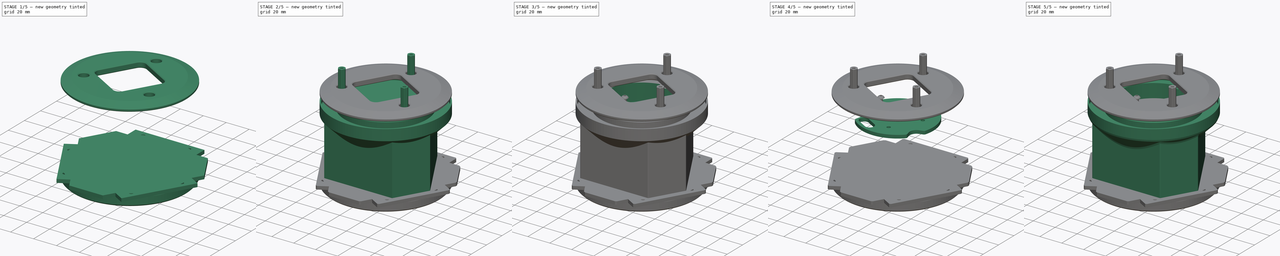
[diagram: build sequence overview — one tinted view per stage of 5, left to right]
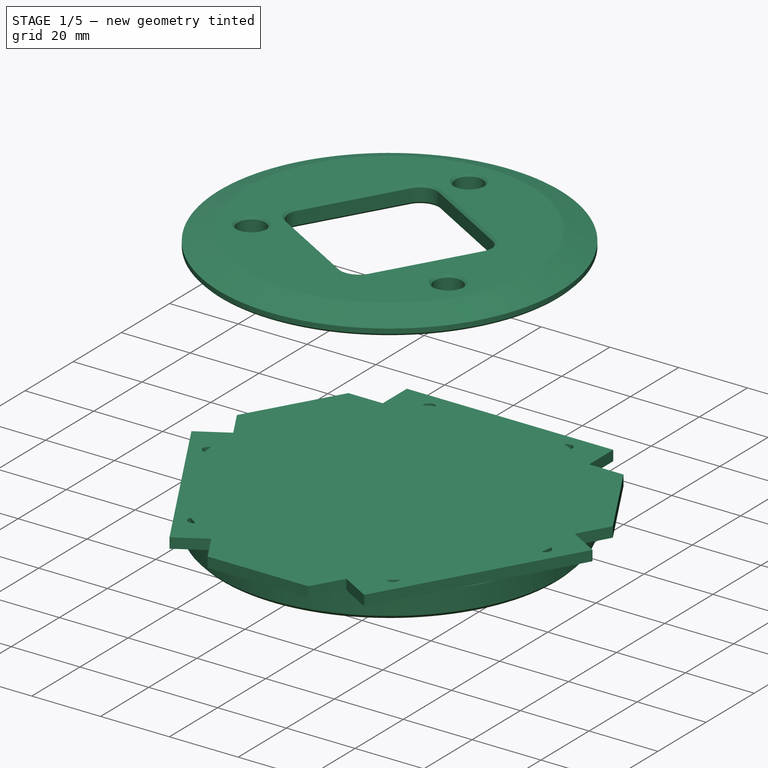
[diagram: stage 1 of 5 — iso view after this stage's code; geometry added in this stage tinted green]
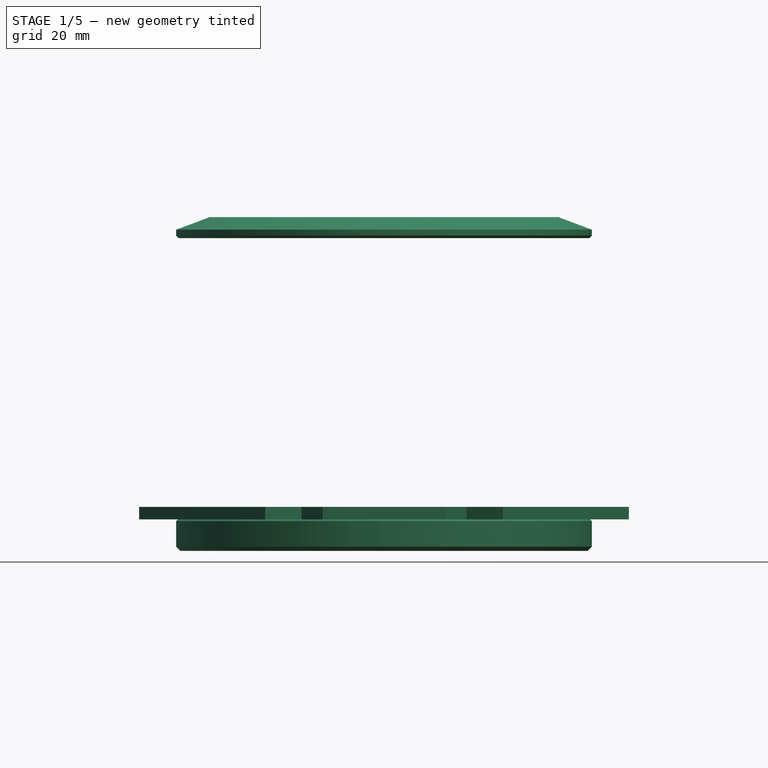
[diagram: stage 1 of 5 — front view after this stage's code; geometry added in this stage tinted green]
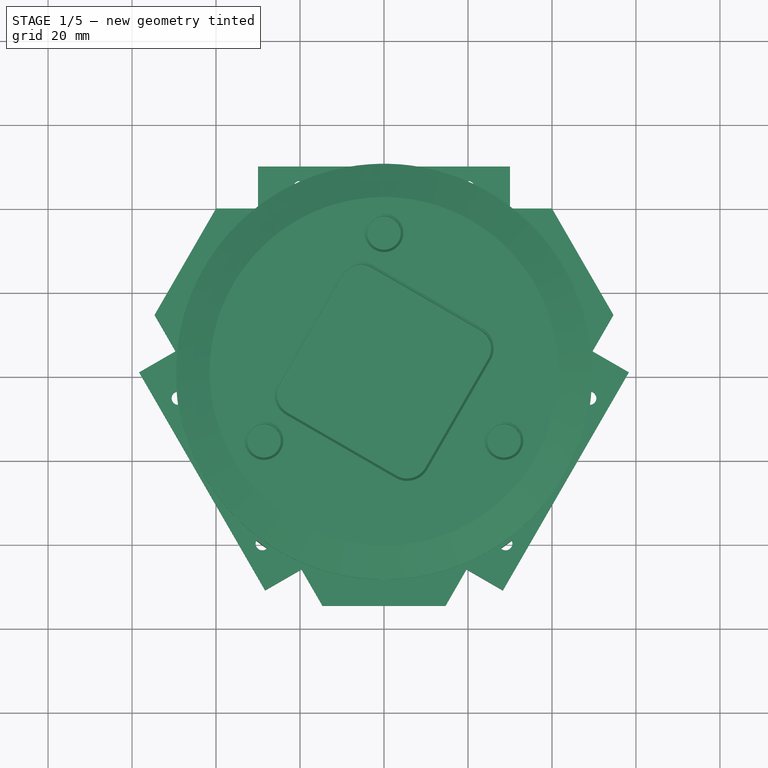
[diagram: stage 1 of 5 — top view after this stage's code; geometry added in this stage tinted green]
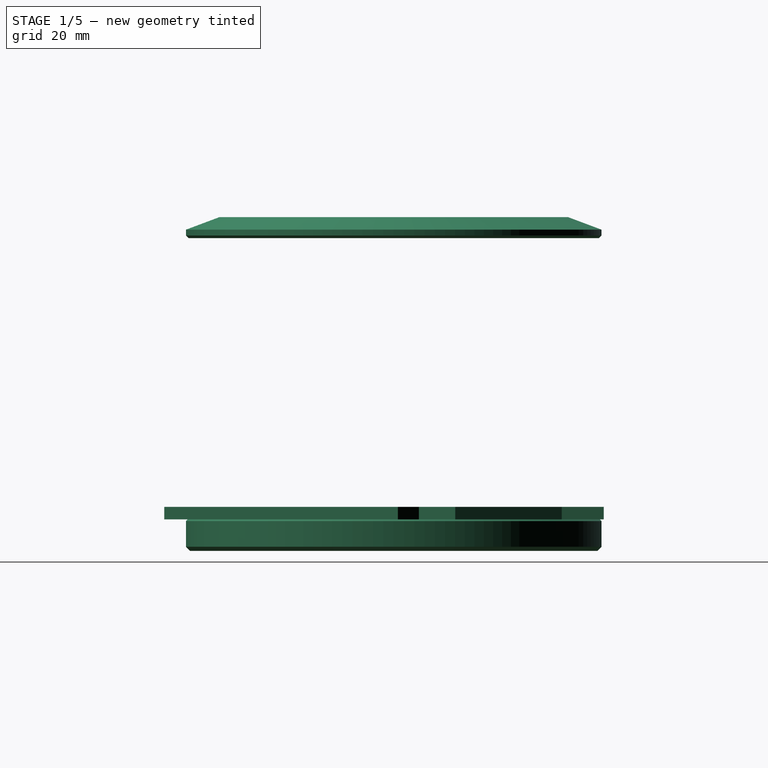
[diagram: stage 1 of 5 — right view after this stage's code; geometry added in this stage tinted green]
FCSTD DOCUMENT  (FreeCAD 2024.2R37226 (Git))
Label: beacon
License: All rights reserved
LicenseURL: http://en.wikipedia.org/wiki/All_rights_reserved
objects: Sketcher::SketchObject×31, App::Part×19, PartDesign::Pocket×18, Part::Feature×17, PartDesign::Fillet×14, PartDesign::Pad×13, PartDesign::Chamfer×13, PartDesign::Body×10, Part::FeaturePython×5, PartDesign::PolarPattern×3, PartDesign::SubShapeBinder×3, PartDesign::Revolution×1, PartDesign::SubtractiveLoft×1, PartDesign::ShapeBinder×1, App::DocumentObjectGroup×1
note: 190 computed .brp shape members not serialized (recipe doc carries the construction recipe); baked Part::Feature solids carry a one-line shape summary decoded from their .brp
EXTERNAL_REF file=../../../Karibous-2024-Hardware/MCAD/robot_holonome.FCStd obj=Part
EXTERNAL_REF file=beacon-assembled.FCStd obj=Body023
EXTERNAL_REF file=beacon-assembled.FCStd obj=Body029
EXTERNAL_REF file=beacon-assembled.FCStd obj=Body024

FEATURE [App::DocumentObjectGroup] Group006  label="Visserie-2023"
  Group = -> [Screw,Screw001,PcbStandoff,PcbStandoff001,PcbStandoff002]
FEATURE [PartDesign::SubShapeBinder] Binder  label="Binder(Fillet021)"
  BindCopyOnChange = 0
  BindMode = 0
  ClaimChildren = false
  Context = -> <external ../../../Karibous-2024-Hardware/MCAD/robot_holonome.FCStd>#Part [Group002.Link014.Group004.Body.Binder.]
  Fuse = false
  MakeFace = true
  OffsetFill = false
  OffsetIntersection = false
  OffsetJoinType = 0
  OffsetOpenResult = false
  PartialLoad = false
  Relative = true
  Support = -> [<external beacon-assembled.FCStd>#Body023[Fillet021.Face140]]
  _Version = 8
FEATURE [Sketcher::SketchObject] Sketch
  AttachmentSupport = -> [XY_Plane]
  FullyConstrained = true
  MapMode = 5
  sketch-geometry (14):
    g0: LineSegment StartX=0 StartY=0 StartZ=0 EndX=-47.3205 EndY=27.3205 EndZ=0
    g1: LineSegment StartX=-47.3205 StartY=27.3205 StartZ=0 EndX=-54.641 EndY=14.641 EndZ=0
    g2: LineSegment StartX=-54.641 StartY=14.641 StartZ=0 EndX=-49.641 EndY=5.98076 EndZ=0
    g3: LineSegment StartX=-49.641 StartY=5.98076 StartZ=0 EndX=-58.3013 EndY=0.980762 EndZ=0
    g4: LineSegment StartX=-58.3013 StartY=0.980762 StartZ=0 EndX=-28.3013 EndY=-50.9808 EndZ=0
    g5: LineSegment StartX=-28.3013 StartY=-50.9808 StartZ=0 EndX=-19.641 EndY=-45.9808 EndZ=0
    g6: LineSegment StartX=-19.641 StartY=-45.9808 StartZ=0 EndX=-14.641 EndY=-54.641 EndZ=0
    g7: LineSegment StartX=-14.641 StartY=-54.641 StartZ=0 EndX=0 EndY=-54.641 EndZ=0
    g8: LineSegment StartX=0 StartY=-54.641 StartZ=0 EndX=0 EndY=0 EndZ=0
    g9: LineSegment StartX=-49.641 StartY=5.98076 StartZ=0 EndX=-19.641 EndY=-45.9808 EndZ=0
    g10: LineSegment StartX=0 StartY=0 StartZ=0 EndX=-43.3013 EndY=-25 EndZ=0
    g11: LineSegment StartX=-53.9711 StartY=3.48076 StartZ=0 EndX=-23.9711 EndY=-48.4808 EndZ=0
    g12: Circle CenterX=-48.9711 CenterY=-5.17949 CenterZ=0 NormalX=0 NormalY=0 NormalZ=1 AngleXU=0 Radius=1.6
    g13: Circle CenterX=-28.9711 CenterY=-39.8205 CenterZ=0 NormalX=0 NormalY=0 NormalZ=1 AngleXU=0 Radius=1.6
  constraints (39):
    c: Coincident(g0,g-1)
    c: Coincident(g0,g1)
    c: Coincident(g1,g2)
    c: Coincident(g2,g3)
    c: Coincident(g3,g4)
    c: Coincident(g4,g5)
    c: Coincident(g5,g6)
    c: Coincident(g6,g7)
    c: PointOnObject(g7,g-2)
    c: Horizontal(g7)
    c: Coincident(g7,g8)
    c: Coincident(g8,g0)
    c: Equal(g0,g8)
    c: Angle(g0,g8) = 2.0944
    c: Perpendicular(g0,g1)
    c: Equal(g1,g7)
    c: Perpendicular(g3,g2)
    c: Perpendicular(g3,g4)
    c: Perpendicular(g5,g4)
    c: Coincident(g9,g2)
    c: Coincident(g9,g5)
    c: Coincident(g10,g0)
    c: PointOnObject(g10,g4)
    c: Parallel(g2,g9)
    c: Parallel(g9,g6)
    c: Equal(g6,g5)
    c: Distance(g4) = 60
    c: Equal(g3,g2)
    c: Distance(g3) = 10
    c: Perpendicular(g4,g10)
    c: Distance(g0,g9) = 40
    c: PointOnObject(g11,g5)
    c: Symmetric(g3,g2,g11)
    c: PointOnObject(g12,g11)
    c: PointOnObject(g13,g11)
    c: Diameter(g13) = 3.2
    c: Equal(g13,g12)
    c: Symmetric(g13,g12,g10)
    c: Distance(g12,g3) = 10
FEATURE [PartDesign::Pad] Pad
  Direction = (0,0,1)
  Length = 3
  Length2 = 100
  Profile = -> Sketch
  Refine = true
  Suppressed = false
  Type = 0
FEATURE [PartDesign::PolarPattern] PolarPattern
  Angle = 360
  Axis = -> Sketch [N_Axis]
  BaseFeature = -> Pad
  Mode = 0
  Occurrences = 3
  Offset = 120
  Originals = -> [Pad]
  Refine = true
  Suppressed = false
FEATURE [Sketcher::SketchObject] Sketch001
  AttachmentSupport = -> [XY_Plane]
  ExternalGeometry = -> [PolarPattern]
  FullyConstrained = true
  MapMode = 5
  sketch-geometry (6):
    g0: LineSegment StartX=-25.6699 StartY=14.8205 StartZ=0 EndX=-34.6699 EndY=-0.767949 EndZ=0
    g1: LineSegment StartX=-34.6699 StartY=-0.767949 StartZ=0 EndX=-18 EndY=-29.641 EndZ=0
    g2: LineSegment StartX=-18 StartY=-29.641 StartZ=0 EndX=2.22791e-11 EndY=-29.641 EndZ=0
    g3: LineSegment StartX=-25.6699 StartY=14.8205 StartZ=0 EndX=3.624e-13 EndY=-1.78e-14 EndZ=0
    g4: LineSegment StartX=3.638e-13 StartY=-1.98e-14 StartZ=0 EndX=2.22776e-11 EndY=-29.641 EndZ=0
    g5: LineSegment StartX=3.638e-13 StartY=-1.98e-14 StartZ=0 EndX=-47.3205 EndY=27.3205 EndZ=0
  constraints (16):
    c: Coincident(g0,g1)
    c: Coincident(g1,g2)
    c: Horizontal(g2)
    c: Equal(g2,g0)
    c: Coincident(g0,g3)
    c: Coincident(g3,g4)
    c: Coincident(g4,g2)
    c: DistanceX(g2,g2) = 18
    c: DistanceY(g-3,g2) = 25
    c: Parallel(g1,g-4)
    c: Coincident(g5,g3)
    c: Symmetric(g-5,g-5,g5)
    c: PointOnObject(g0,g5)
    c: Equal(g3,g4)
    c: Parallel(g0,g-5)
    c: Coincident(g3,g-1)
FEATURE [PartDesign::Pocket] Pocket
  BaseFeature = -> PolarPattern
  Direction = (1,1,1)
  Length = 5
  Length2 = 100
  Profile = -> Sketch001
  Refine = true
  Reversed = true
  Suppressed = false
  Type = 1
FEATURE [PartDesign::Body] Body  label="SupportBeacon"
  Group = -> [Sketch,Pad,Sketch001,PolarPattern,Pocket,PolarPattern001,Chamfer,Fillet,Binder,Sketch066,Pocket032]
  Origin = -> Origin055
  Tip = -> Pocket032
FEATURE [Sketcher::SketchObject] Sketch067
  FullyConstrained = true
  MapMode = 5
  sketch-geometry (7):
    g0: Circle CenterX=-2.1495e-12 CenterY=1.07369e-11 CenterZ=0 NormalX=0 NormalY=0 NormalZ=1 AngleXU=0 Radius=49.5
    g1: Circle CenterX=-1.1313e-12 CenterY=33 CenterZ=0 NormalX=0 NormalY=0 NormalZ=1 AngleXU=0 Radius=1.6
    g2: Circle CenterX=-28.5788 CenterY=-16.5 CenterZ=0 NormalX=0 NormalY=0 NormalZ=1 AngleXU=0 Radius=1.6
    g3: Circle CenterX=28.5788 CenterY=-16.5 CenterZ=0 NormalX=0 NormalY=0 NormalZ=1 AngleXU=0 Radius=1.6
    g4: LineSegment StartX=-28.5788 StartY=-16.5 StartZ=0 EndX=-2.1494e-12 EndY=1.07363e-11 EndZ=0
    g5: LineSegment StartX=-2.1495e-12 StartY=1.07369e-11 StartZ=0 EndX=-1.1313e-12 EndY=33 EndZ=0
    g6: LineSegment StartX=-2.1495e-12 StartY=1.07369e-11 StartZ=0 EndX=28.5788 EndY=-16.5 EndZ=0
  constraints (17):
    c: Coincident(g0,g-1)
    c: Diameter(g0) = 99
    c: PointOnObject(g1,g-2)
    c: Coincident(g4,g2)
    c: Coincident(g4,g0)
    c: Coincident(g5,g0)
    c: Coincident(g5,g1)
    c: Coincident(g6,g0)
    c: Coincident(g6,g3)
    c: Equal(g6,g4)
    c: Equal(g4,g5)
    c: Angle(g6,g5) = 2.0944
    c: Angle(g5,g4) = 2.0944
    c: DistanceY(g5,g5) = 33
    c: Equal(g3,g1)
    c: Equal(g3,g2)
    c: Diameter(g3) = 3.2
FEATURE [PartDesign::Pad] Pad034
  AlongSketchNormal = false
  Direction = (0,0,1)
  Length = 3
  Length2 = 100
  Profile = -> Sketch067
  Refine = true
  Suppressed = false
  Type = 0
FEATURE [PartDesign::Body] Body029  label="TopSupport"
  Group = -> [Sketch067,Pad034]
  Origin = -> Origin056
  Placement = pos=(0,0,92) rot=(0,0,1;0rad)
  Tip = -> Pad034
FEATURE [Sketcher::SketchObject] Sketch069
  FullyConstrained = true
  MapMode = 5
  sketch-geometry (1):
    g0: Circle CenterX=0 CenterY=0 CenterZ=0 NormalX=0 NormalY=0 NormalZ=1 AngleXU=0 Radius=48.5
  constraints (2):
    c: Coincident(g0,g-1)
    c: Diameter(g0) = 97
FEATURE [PartDesign::Pad] Pad036
  AlongSketchNormal = false
  Direction = (0,0,1)
  Length = 2
  Length2 = 100
  Profile = -> Sketch069
  Refine = true
  Suppressed = false
  Type = 0
FEATURE [PartDesign::Fillet] Fillet024
  Base = -> Pad036 [Edge3]
  BaseFeature = -> Pad036
  Radius = 1.9
  Refine = true
  SupportTransform = false
  Suppressed = false
  UseAllEdges = false
FEATURE [PartDesign::Body] Body031  label="SupportCrochet"
  Group = -> [Sketch069,Pad036,Fillet024]
  Origin = -> Origin057
  Placement = pos=(0,0,95) rot=(0,0,1;0rad)
  Tip = -> Fillet024
FEATURE [PartDesign::SubShapeBinder] Binder006  label="Binder006(Pad034)"
  BindCopyOnChange = 0
  BindMode = 0
  ClaimChildren = false
  Context = -> <external ../../../Karibous-2024-Hardware/MCAD/robot_holonome.FCStd>#Part [Group002.Link014.Body033.Binder006.]
  Fuse = false
  MakeFace = true
  OffsetFill = false
  OffsetIntersection = false
  OffsetJoinType = 0
  OffsetOpenResult = false
  PartialLoad = false
  Relative = true
  Support = -> [<external beacon-assembled.FCStd>#Body029[Pad034.Face5]]
  _Version = 8
FEATURE [Sketcher::SketchObject] Sketch075
  ExternalGeometry = -> [Binder006]
  FullyConstrained = true
  MapMode = 5
  sketch-geometry (4):
    g0: Circle CenterX=0 CenterY=0 CenterZ=0 NormalX=0 NormalY=0 NormalZ=1 AngleXU=0 Radius=49.5
    g1: Circle CenterX=0 CenterY=33 CenterZ=0 NormalX=0 NormalY=0 NormalZ=1 AngleXU=0 Radius=1.6
    g2: Circle CenterX=28.5788 CenterY=-16.5 CenterZ=0 NormalX=0 NormalY=0 NormalZ=1 AngleXU=0 Radius=1.6
    g3: Circle CenterX=-28.5788 CenterY=-16.5 CenterZ=0 NormalX=0 NormalY=0 NormalZ=1 AngleXU=0 Radius=1.6
  constraints (8):
    c: Coincident(g0,g-1)
    c: Equal(g0,g-3)
    c: Coincident(g1,g-4)
    c: Coincident(g2,g-5)
    c: Coincident(g3,g-6)
    c: Equal(g3,g1)
    c: Equal(g1,g2)
    c: Equal(g1,g-4)
FEATURE [PartDesign::Pad] Pad039
  AlongSketchNormal = false
  Direction = (0,0,1)
  Length = 7.5
  Length2 = 10
  Profile = -> Sketch075
  ReferenceAxis = -> Sketch075 [N_Axis]
  Refine = true
  Reversed = true
  Suppressed = false
  Type = 0
FEATURE [Sketcher::SketchObject] Sketch076
  AttachmentSupport = -> [Pad039]
  ExternalGeometry = -> [Pad039]
  FullyConstrained = true
  MapMode = 5
  Placement = pos=(0,0,-7.5) rot=(1,0,0;3.14159rad)
  sketch-geometry (4):
    g0: Circle CenterX=0 CenterY=0 CenterZ=0 NormalX=0 NormalY=0 NormalZ=1 AngleXU=0 Radius=19
    g1: Circle CenterX=28.5788 CenterY=16.5 CenterZ=0 NormalX=0 NormalY=0 NormalZ=1 AngleXU=0 Radius=6
    g2: Circle CenterX=0 CenterY=-33 CenterZ=0 NormalX=0 NormalY=0 NormalZ=1 AngleXU=0 Radius=6
    g3: Circle CenterX=-28.5788 CenterY=16.5 CenterZ=0 NormalX=0 NormalY=0 NormalZ=1 AngleXU=0 Radius=6
  constraints (8):
    c: Coincident(g0,g-1)
    c: Diameter(g0) = 38
    c: Coincident(g1,g-3)
    c: Coincident(g2,g-4)
    c: Coincident(g3,g-5)
    c: Equal(g3,g1)
    c: Equal(g3,g2)
    c: Diameter(g3) = 12
FEATURE [PartDesign::Pocket] Pocket036
  AlongSketchNormal = false
  BaseFeature = -> Pad039
  Direction = (0,0,1)
  Length = 2.5
  Length2 = 10
  Profile = -> Sketch076
  ReferenceAxis = -> Sketch076 [N_Axis]
  Refine = true
  Suppressed = false
  Type = 0
FEATURE [PartDesign::Chamfer] Chamfer012
  Angle = 45
  Base = -> Pocket036 [Edge8,Edge9,Edge7,Edge10,Edge3]
  BaseFeature = -> Pocket036
  ChamferType = 0
  FlipDirection = false
  Refine = true
  Size = 1
  Size2 = 1
  SupportTransform = false
  Suppressed = false
  UseAllEdges = false
FEATURE [PartDesign::Chamfer] Chamfer013
  Angle = 45
  Base = -> Chamfer012 [Edge16,Edge18,Edge8,Edge7,Edge14,Edge6,Edge3]
  BaseFeature = -> Chamfer012
  ChamferType = 0
  FlipDirection = false
  Refine = true
  Size = 0.4
  Size2 = 1
  SupportTransform = false
  Suppressed = false
  UseAllEdges = false
FEATURE [PartDesign::Body] Body033  label="CasquetteTop"
  Group = -> [Binder006,Sketch075,Pad039,Sketch076,Pocket036,Chamfer012,Chamfer013]
  Origin = -> Origin059
  Placement = pos=(0,0,92) rot=(0,0,1;0rad)
  Tip = -> Chamfer013
FEATURE [PartDesign::SubShapeBinder] Binder007  label="Binder007(Fillet011)"
  BindCopyOnChange = 0
  BindMode = 0
  ClaimChildren = false
  Context = -> <external ../../../Karibous-2024-Hardware/MCAD/robot_holonome.FCStd>#Part [Group002.Link014.Body034.Binder007.]
  Fuse = false
  MakeFace = true
  OffsetFill = false
  OffsetIntersection = false
  OffsetJoinType = 0
  OffsetOpenResult = false
  PartialLoad = false
  Relative = true
  Support = -> [<external beacon-assembled.FCStd>#Body024[Fillet011.Face5]]
  _Version = 8
FEATURE [PartDesign::Pad] Pad040
  AlongSketchNormal = false
  Direction = (0,0,1)
  Length = 5
  Length2 = 10
  Profile = -> Binder007
  Refine = true
  Suppressed = false
  Type = 0
FEATURE [Sketcher::SketchObject] Sketch077
  ExternalGeometry = -> [Pad040]
  FullyConstrained = true
  MapMode = 5
  sketch-geometry (3):
    g0: Circle CenterX=0 CenterY=33 CenterZ=0 NormalX=0 NormalY=0 NormalZ=1 AngleXU=0 Radius=4
    g1: Circle CenterX=28.5788 CenterY=-16.5 CenterZ=0 NormalX=0 NormalY=0 NormalZ=1 AngleXU=0 Radius=4
    g2: Circle CenterX=-28.5788 CenterY=-16.5 CenterZ=0 NormalX=0 NormalY=0 NormalZ=1 AngleXU=0 Radius=4
  constraints (6):
    c: Coincident(g0,g-3)
    c: Coincident(g1,g-4)
    c: Coincident(g2,g-5)
    c: Equal(g0,g1)
    c: Equal(g0,g2)
    c: Diameter(g0) = 8
FEATURE [PartDesign::Pocket] Pocket037
  AlongSketchNormal = false
  BaseFeature = -> Pad040
  Direction = (0,0,-1)
  Length = 5
  Length2 = 10
  Profile = -> Sketch077
  ReferenceAxis = -> Sketch077 [N_Axis]
  Refine = true
  Reversed = true
  Suppressed = false
  Type = 1
FEATURE [PartDesign::Chamfer] Chamfer014
  Angle = 45
  Base = -> Pocket037 [Edge20]
  BaseFeature = -> Pocket037
  ChamferType = 1
  FlipDirection = false
  Refine = true
  Size = 8
  Size2 = 3
  SupportTransform = false
  Suppressed = false
  UseAllEdges = false
FEATURE [PartDesign::Chamfer] Chamfer015
  Angle = 45
  Base = -> Chamfer014 [Edge6,Edge12,Edge3,Edge2,Edge17,Edge35,Edge15,Edge38,Edge25]
  BaseFeature = -> Chamfer014
  ChamferType = 0
  FlipDirection = false
  Refine = true
  Size = 0.6
  Size2 = 1
  SupportTransform = false
  Suppressed = false
  UseAllEdges = false
FEATURE [PartDesign::Body] Body034  label="Cache"
  Group = -> [Binder007,Pad040,Sketch077,Pocket037,Chamfer014,Chamfer015]
  Origin = -> Origin060
  Tip = -> Chamfer015
FEATURE [App::Part] Part  label="BeaconAssembled"
  Group = -> [Body023,Body024,MatDetection_2023_1,Part006,Body028,Screw001,PcbStandoff,PcbStandoff001,PcbStandoff002,Screw,Group006,Body,Body029,Body031,Body033,Body034]
  Origin = -> Origin
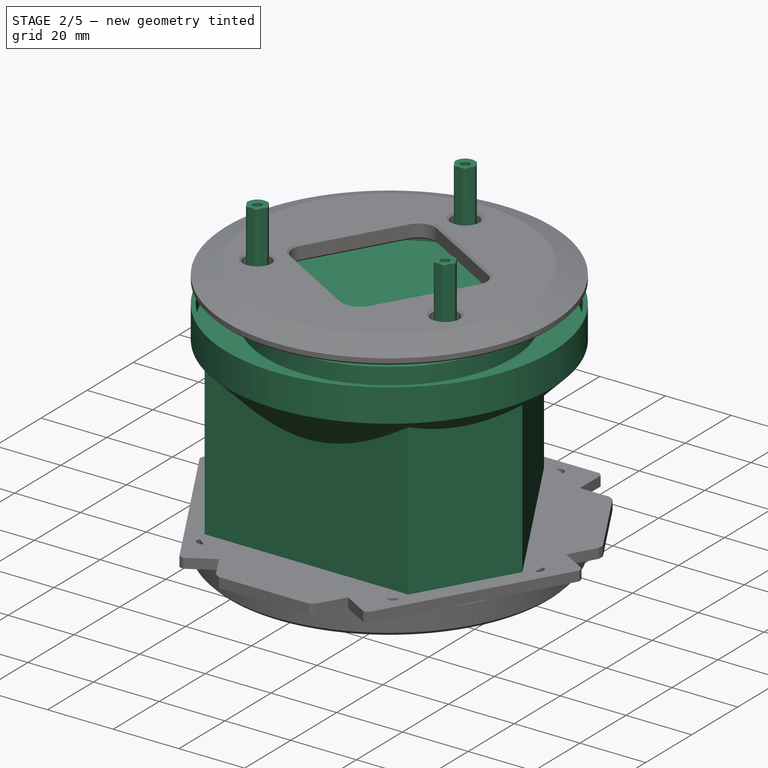
[diagram: stage 2 of 5 — iso view after this stage's code; geometry added in this stage tinted green]
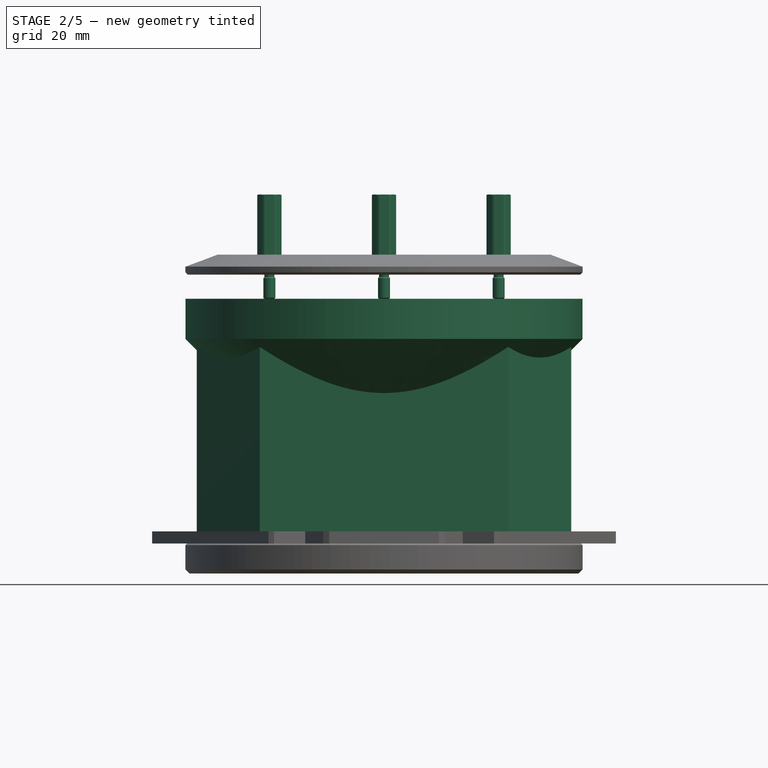
[diagram: stage 2 of 5 — front view after this stage's code; geometry added in this stage tinted green]
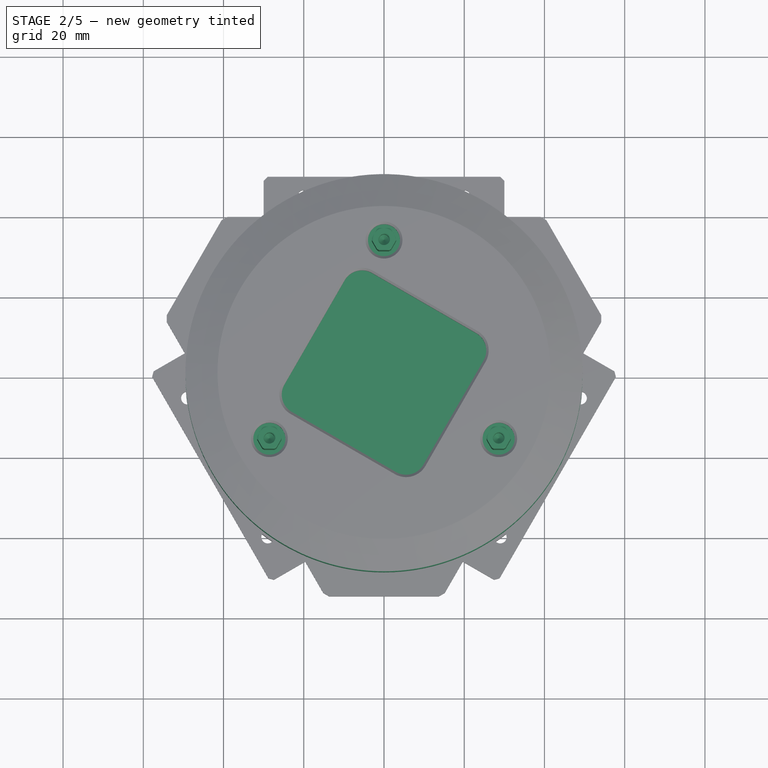
[diagram: stage 2 of 5 — top view after this stage's code; geometry added in this stage tinted green]
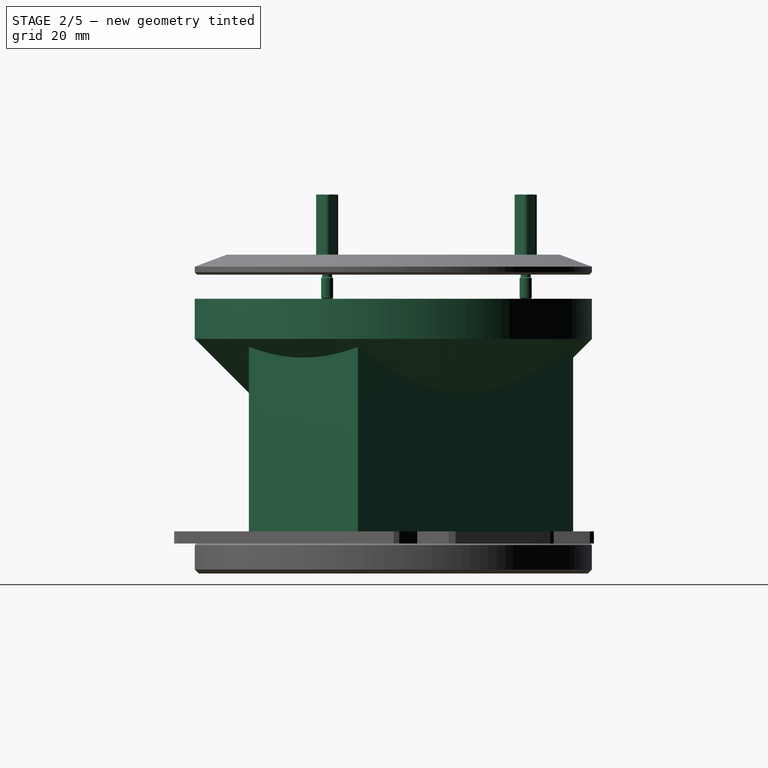
[diagram: stage 2 of 5 — right view after this stage's code; geometry added in this stage tinted green]
FEATURE [Sketcher::SketchObject] Sketch042
  AttachmentSupport = -> [XY_Plane024]
  FullyConstrained = true
  MapMode = 5
  sketch-geometry (9):
    g0: LineSegment StartX=-15.683 StartY=44.8363 StartZ=0 EndX=15.683 EndY=44.8363 EndZ=0
    g1: Circle CenterX=-4.0211e-12 CenterY=3.5659e-12 CenterZ=0 NormalX=0 NormalY=0 NormalZ=1 AngleXU=0 Radius=47.5
    g2: Circle CenterX=-4.0211e-12 CenterY=3.5659e-12 CenterZ=0 NormalX=0 NormalY=0 NormalZ=1 AngleXU=0 Radius=36
    g3: LineSegment StartX=-15.683 StartY=44.8363 StartZ=0 EndX=-46.6709 EndY=-8.83631 EndZ=0
    g4: LineSegment StartX=-46.6709 StartY=-8.83631 StartZ=0 EndX=-30.9879 EndY=-36 EndZ=0
    g5: LineSegment StartX=-30.9879 StartY=-36 StartZ=0 EndX=30.9879 EndY=-36 EndZ=0
    g6: LineSegment StartX=30.9879 StartY=-36 StartZ=0 EndX=46.6709 EndY=-8.83631 EndZ=0
    g7: LineSegment StartX=46.6709 StartY=-8.83631 StartZ=0 EndX=15.683 EndY=44.8363 EndZ=0
    g8: LineSegment StartX=-4.0211e-12 StartY=3.5659e-12 StartZ=0 EndX=-38.8294 EndY=-22.4182 EndZ=0
  constraints (25):
    c: Horizontal(g0)
    c: PointOnObject(g0,g1)
    c: Diameter(g1) = 95
    c: PointOnObject(g0,g1)
    c: Diameter(g2) = 72
    c: Coincident(g3,g0)
    c: PointOnObject(g3,g1)
    c: Coincident(g2,g1)
    c: Coincident(g2,g-1)
    c: Coincident(g4,g3)
    c: PointOnObject(g4,g1)
    c: Coincident(g5,g4)
    c: PointOnObject(g5,g1)
    c: Horizontal(g5)
    c: Coincident(g6,g5)
    c: PointOnObject(g6,g1)
    c: Coincident(g7,g6)
    c: Coincident(g7,g0)
    c: Equal(g0,g4)
    c: Equal(g4,g6)
    c: Equal(g7,g5)
    c: Coincident(g8,g2)
    c: PointOnObject(g8,g4)
    c: Perpendicular(g4,g8)
    c: Tangent(g5,g2)
FEATURE [PartDesign::Pad] Pad026
  AlongSketchNormal = false
  Direction = (0,0,1)
  Length = 61
  Length2 = 100
  Profile = -> Sketch042
  Refine = true
  Suppressed = false
  Type = 0
FEATURE [Sketcher::SketchObject] Sketch043
  AttachmentSupport = -> [YZ_Plane024]
  ExternalGeometry = -> [Pad026]
  FullyConstrained = true
  MapMode = 5
  Placement = pos=(0,0,0) rot=(0.57735,0.57735,0.57735;2.0944rad)
  sketch-geometry (5):
    g0: LineSegment StartX=-3.572e-13 StartY=61 StartZ=0 EndX=49.5 EndY=61 EndZ=0
    g1: LineSegment StartX=49.5 StartY=61 StartZ=0 EndX=49.5 EndY=51 EndZ=0
    g2: LineSegment StartX=49.5 StartY=51 StartZ=0 EndX=20 EndY=21.5 EndZ=0
    g3: LineSegment StartX=-2.9e-14 StartY=21.5 StartZ=0 EndX=20 EndY=21.5 EndZ=0
    g4: LineSegment StartX=-2.9e-14 StartY=21.5 StartZ=0 EndX=-3.572e-13 EndY=61 EndZ=0
  constraints (15):
    c: PointOnObject(g0,g-2)
    c: Horizontal(g0)
    c: Coincident(g1,g0)
    c: Coincident(g2,g1)
    c: PointOnObject(g3,g-2)
    c: Coincident(g3,g2)
    c: Horizontal(g3)
    c: Coincident(g4,g0)
    c: Coincident(g3,g4)
    c: Vertical(g1)
    c: PointOnObject(g-3,g0)
    c: DistanceY(g1,g1) = 10
    c: Angle(g1,g2) = 2.35619
    c: DistanceX(g0,g0) = 49.5
    c: DistanceX(g3,g3) = 20
FEATURE [PartDesign::Revolution] Revolution004
  Angle = 360
  Angle2 = 60
  Axis = (-2e-16,3e-16,1)
  Base = (0,0,0)
  BaseFeature = -> Pad026
  Profile = -> Sketch043
  ReferenceAxis = -> Sketch043 [V_Axis]
  Refine = true
  Reversed = true
  Suppressed = false
  Type = 0
FEATURE [Sketcher::SketchObject] Sketch044
  AttachmentSupport = -> [Revolution004]
  FullyConstrained = true
  MapMode = 5
  Placement = pos=(-1.34e-14,1.71e-14,61) rot=(0,0,1;0rad)
  sketch-geometry (2):
    g0: Circle CenterX=0 CenterY=0 CenterZ=0 NormalX=0 NormalY=0 NormalZ=1 AngleXU=0 Radius=48.25
    g1: Circle CenterX=0 CenterY=0 CenterZ=0 NormalX=0 NormalY=0 NormalZ=1 AngleXU=0 Radius=37.5
  constraints (4):
    c: Coincident(g0,g-1)
    c: Coincident(g1,g0)
    c: Diameter(g0) = 96.5
    c: Diameter(g1) = 75
FEATURE [PartDesign::Pocket] Pocket019
  BaseFeature = -> Revolution004
  Direction = (1,1,1)
  Length = 5
  Length2 = 100
  Profile = -> Sketch044
  Refine = true
  Suppressed = false
  Type = 0
FEATURE [Sketcher::SketchObject] Sketch045
  AttachmentSupport = -> [Pocket019]
  FullyConstrained = true
  MapMode = 5
  Placement = pos=(-1.34e-14,1.71e-14,61) rot=(0,0,1;0rad)
  sketch-geometry (6):
    g0: Circle CenterX=-6.97e-14 CenterY=33 CenterZ=0 NormalX=0 NormalY=0 NormalZ=1 AngleXU=0 Radius=2.1
    g1: Circle CenterX=28.5788 CenterY=-16.5 CenterZ=0 NormalX=0 NormalY=0 NormalZ=1 AngleXU=0 Radius=2.1
    g2: Circle CenterX=-28.5788 CenterY=-16.5 CenterZ=0 NormalX=0 NormalY=0 NormalZ=1 AngleXU=0 Radius=2.1
    g3: LineSegment StartX=-28.5788 StartY=-16.5 StartZ=0 EndX=4.26e-14 EndY=-1.279e-13 EndZ=0
    g4: LineSegment StartX=4.18e-14 StartY=-1.265e-13 StartZ=0 EndX=28.5788 EndY=-16.5 EndZ=0
    g5: LineSegment StartX=4.18e-14 StartY=-1.265e-13 StartZ=0 EndX=-6.97e-14 EndY=33 EndZ=0
  constraints (15):
    c: PointOnObject(g0,g-2)
    c: Coincident(g3,g2)
    c: Coincident(g3,g-1)
    c: Coincident(g4,g3)
    c: Coincident(g4,g1)
    c: Coincident(g5,g3)
    c: Coincident(g5,g0)
    c: Equal(g2,g1)
    c: Equal(g2,g0)
    c: Diameter(g2) = 4.2
    c: Equal(g3,g4)
    c: Equal(g4,g5)
    c: Angle(g4,g5) = 2.0944
    c: Angle(g5,g3) = 2.0944
    c: DistanceY(g5,g5) = 33
FEATURE [PartDesign::Pocket] Pocket020
  BaseFeature = -> Pocket019
  Direction = (1,1,1)
  Length = 12
  Length2 = 100
  Profile = -> Sketch045
  Refine = true
  Suppressed = false
  Type = 1
FEATURE [PartDesign::Body] Body028  label="SupportLD06-2023"
  Group = -> [ShapeBinder,Sketch064,Pad033,Fillet022,Pocket031]
  Origin = -> Origin054
  Placement = pos=(0,0,3) rot=(0,0,1;0rad)
  Tip = -> Pocket031
FEATURE [Part::FeaturePython] PcbStandoff  label="M3x5.5x20-Standoff"  # Fasteners workbench fastener (typed FeaturePython)
  Placement = pos=(-28.5788,-16.5,67) rot=(0,0,1;0rad)
  diameter = 2
  invert = false
  leftHanded = false
  length = 15
  lengthCustom = 20
  matchOuter = false
  offset = 0
  screwLength = 6
  thread = false
  type = 0
  width = 1
FEATURE [Part::FeaturePython] PcbStandoff001  label="M3x5.5x20-Standoff001"  # Fasteners workbench fastener (typed FeaturePython)
  Placement = pos=(28.5788,-16.5,67) rot=(0,0,1;0rad)
  diameter = 2
  invert = false
  leftHanded = false
  length = 15
  lengthCustom = 20
  matchOuter = false
  offset = 0
  screwLength = 6
  thread = false
  type = 0
  width = 1
FEATURE [Part::FeaturePython] PcbStandoff002  label="M3x5.5x20-Standoff002"  # Fasteners workbench fastener (typed FeaturePython)
  Placement = pos=(1.97e-13,33,67) rot=(0,0,1;0rad)
  diameter = 2
  invert = false
  leftHanded = false
  length = 15
  lengthCustom = 20
  matchOuter = false
  offset = 0
  screwLength = 6
  thread = false
  type = 0
  width = 1
FEATURE [Part::FeaturePython] Screw  label="M3x10-Vis"  # Fasteners workbench fastener (typed FeaturePython)
  Placement = pos=(-25.9808,15,51.3) rot=(0,0,1;0rad)
  diameter = 1
  invert = false
  leftHanded = false
  length = 2
  lengthCustom = 10
  matchOuter = false
  offset = 0
  thread = false
  type = 40
FEATURE [Part::FeaturePython] Screw001  label="M3x10-Vis001"  # Fasteners workbench fastener (typed FeaturePython)
  Placement = pos=(15,25.9808,51.3) rot=(0,0,1;0rad)
  diameter = 1
  invert = false
  leftHanded = false
  length = 2
  lengthCustom = 10
  matchOuter = false
  offset = 0
  thread = false
  type = 40
FEATURE [PartDesign::PolarPattern] PolarPattern001
  Angle = 360
  Axis = -> Sketch001 [N_Axis]
  BaseFeature = -> Pocket
  Mode = 0
  Occurrences = 3
  Offset = 120
  Originals = -> [Pocket]
  Refine = true
  Suppressed = false
FEATURE [PartDesign::Chamfer] Chamfer
  Angle = 45
  Base = -> PolarPattern001 [Edge1,Edge6,Edge73,Edge74,Edge77,Edge79,Edge83,Edge84,Edge80,Edge78,Edge72,Edge8]
  BaseFeature = -> PolarPattern001
  ChamferType = 0
  FlipDirection = false
  Refine = true
  Size = 1
  Size2 = 1
  SupportTransform = false
  Suppressed = false
  UseAllEdges = false
FEATURE [PartDesign::Fillet] Fillet
  Base = -> Chamfer [Edge123,Edge127,Edge128,Edge126,Edge125,Edge124]
  BaseFeature = -> Chamfer
  Radius = 3
  Refine = true
  SupportTransform = false
  Suppressed = false
  UseAllEdges = false
FEATURE [Sketcher::SketchObject] Sketch066
  AttachmentSupport = -> [Binder]
  ExternalGeometry = -> [Binder]
  FullyConstrained = true
  MapMode = 5
  Placement = pos=(0,0,3) rot=(1,0,0;3.14159rad)
  sketch-geometry (3):
    g0: Circle CenterX=-24.3484 CenterY=30.5 CenterZ=0 NormalX=0 NormalY=0 NormalZ=1 AngleXU=0 Radius=1.6
    g1: Circle CenterX=38.588 CenterY=5.83631 CenterZ=0 NormalX=0 NormalY=0 NormalZ=1 AngleXU=0 Radius=1.6
    g2: Circle CenterX=-14.2396 CenterY=-36.3363 CenterZ=0 NormalX=0 NormalY=0 NormalZ=1 AngleXU=0 Radius=1.6
  constraints (6):
    c: Coincident(g0,g-3)
    c: Coincident(g1,g-5)
    c: Coincident(g2,g-4)
    c: Equal(g2,g1)
    c: Equal(g2,g0)
    c: Diameter(g2) = 3.2
FEATURE [PartDesign::Pocket] Pocket032
  BaseFeature = -> Fillet
  Direction = (0,0,1)
  Length = 5
  Length2 = 100
  Profile = -> Sketch066
  Refine = true
  Reversed = true
  Suppressed = false
  Type = 1
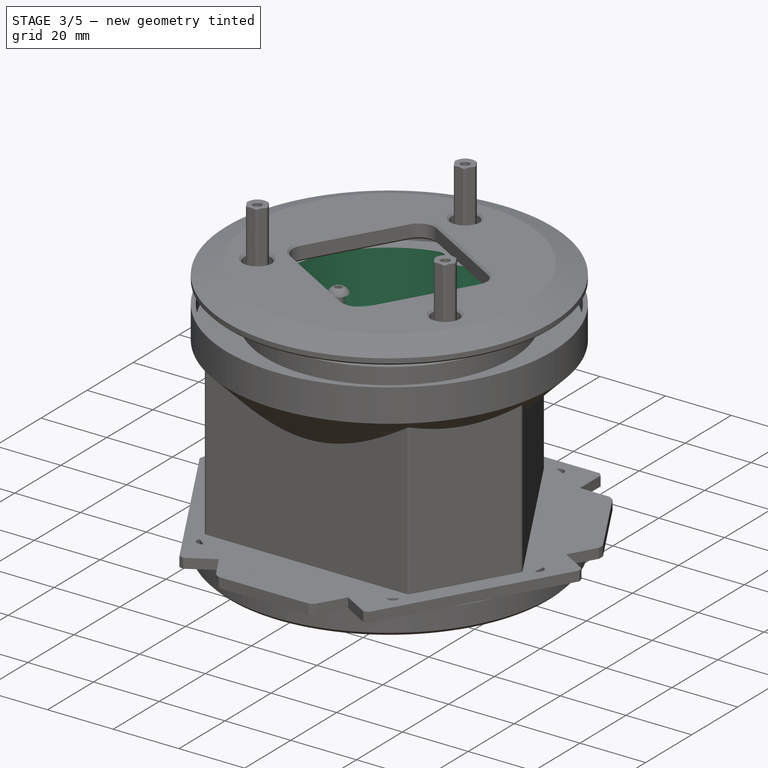
[diagram: stage 3 of 5 — iso view after this stage's code; geometry added in this stage tinted green]
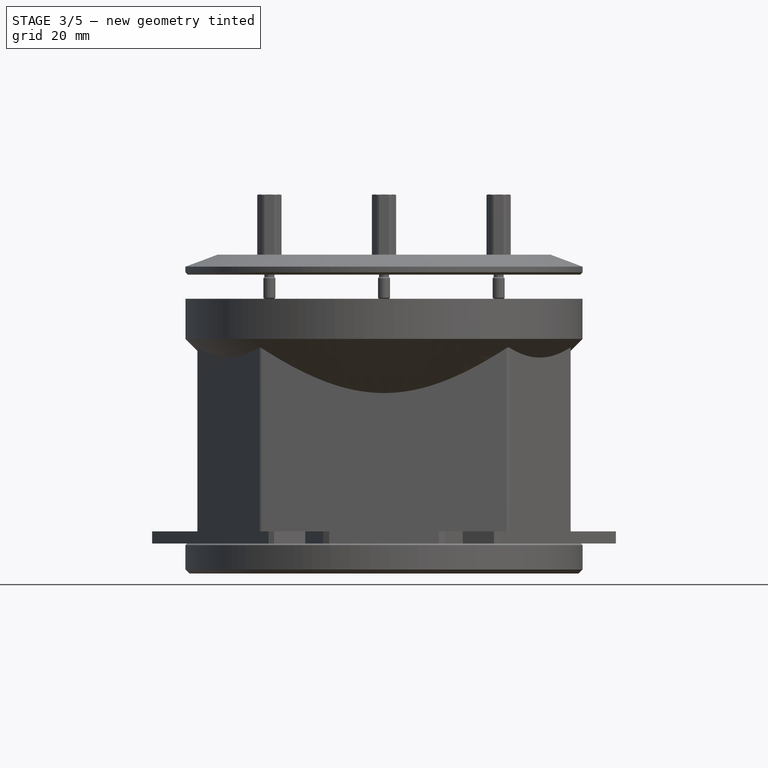
[diagram: stage 3 of 5 — front view after this stage's code; geometry added in this stage tinted green]
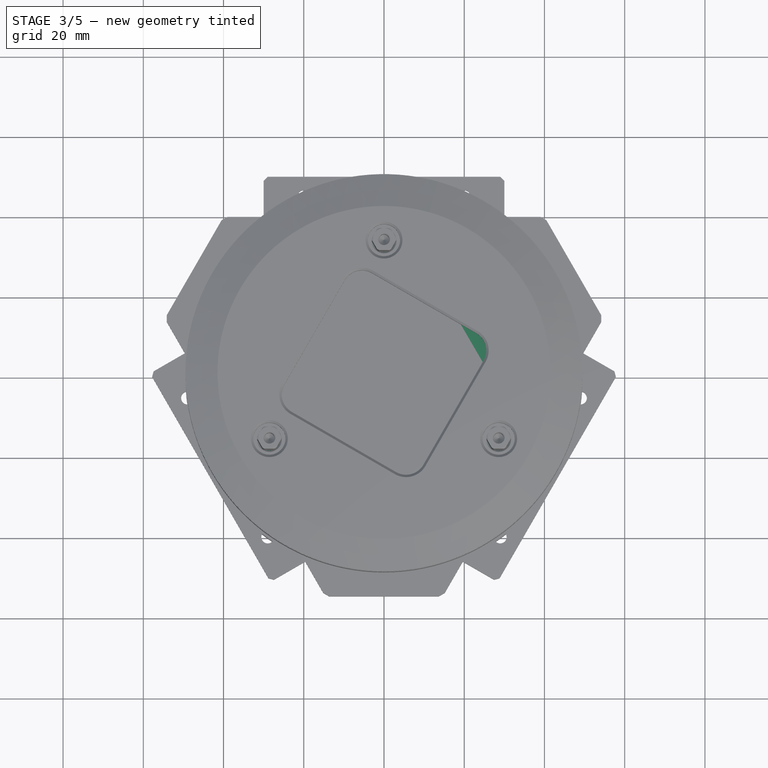
[diagram: stage 3 of 5 — top view after this stage's code; geometry added in this stage tinted green]
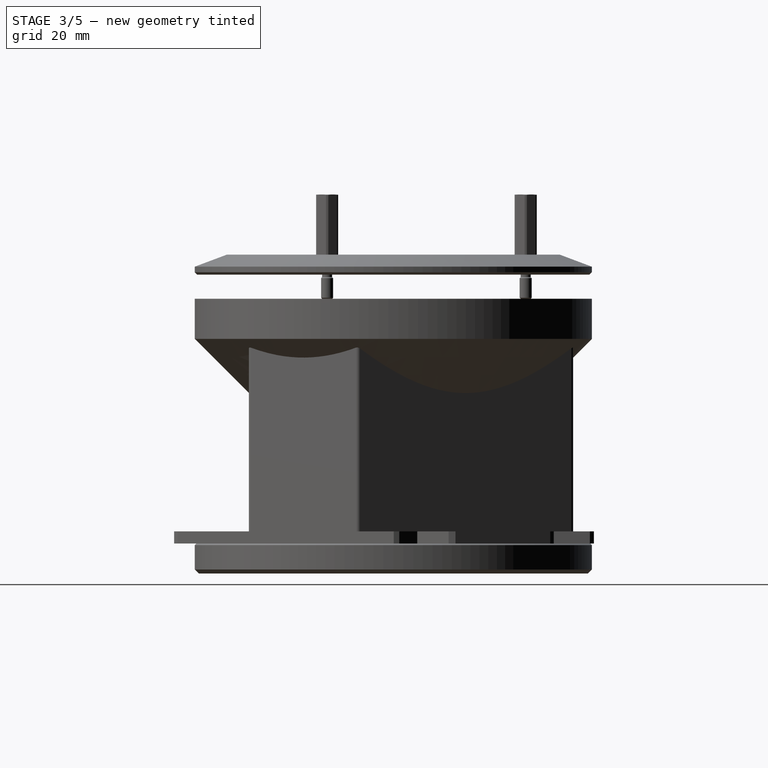
[diagram: stage 3 of 5 — right view after this stage's code; geometry added in this stage tinted green]
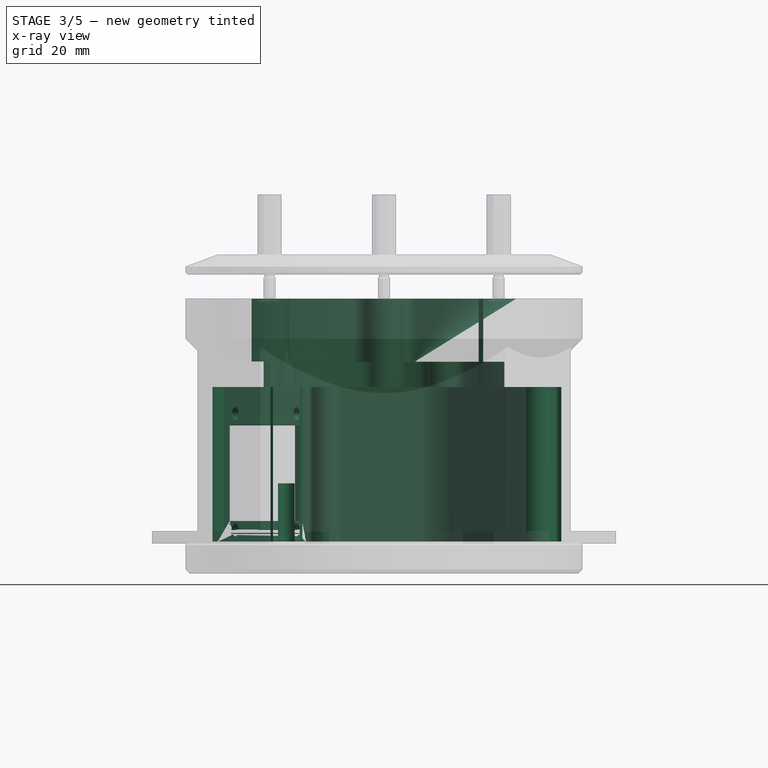
[diagram: stage 3 of 5 — x-ray composite at the front view; earlier geometry ghosted, this stage's added geometry solid]
FEATURE [Sketcher::SketchObject] Sketch047
  AttachmentSupport = -> [Pocket020]
  ExternalGeometry = -> [Pocket020]
  FullyConstrained = true
  MapMode = 5
  Placement = pos=(-1.34e-14,1.71e-14,61) rot=(0,0,1;0rad)
  sketch-geometry (6):
    g0: ArcOfCircle CenterX=5.9282e-12 CenterY=33 CenterZ=0 NormalX=0 NormalY=0 NormalZ=1 AngleXU=0 Radius=5 StartAngle=3.21742 EndAngle=6.20736
    g1: ArcOfCircle CenterX=-28.5788 CenterY=-16.5 CenterZ=0 NormalX=0 NormalY=0 NormalZ=1 AngleXU=0 Radius=5 StartAngle=5.31182 EndAngle=8.30175
    g2: ArcOfCircle CenterX=28.5788 CenterY=-16.5 CenterZ=0 NormalX=0 NormalY=0 NormalZ=1 AngleXU=0 Radius=5 StartAngle=1.12303 EndAngle=4.11296
    g3: ArcOfCircle CenterX=1.58681e-11 CenterY=6.06976e-11 CenterZ=0 NormalX=0 NormalY=0 NormalZ=1 AngleXU=0 Radius=33 StartAngle=1.72246 EndAngle=3.51353
    g4: ArcOfCircle CenterX=1.58681e-11 CenterY=6.06976e-11 CenterZ=0 NormalX=0 NormalY=0 NormalZ=1 AngleXU=0 Radius=33 StartAngle=5.91125 EndAngle=7.70232
    g5: ArcOfCircle CenterX=1.58681e-11 CenterY=6.06976e-11 CenterZ=0 NormalX=0 NormalY=0 NormalZ=1 AngleXU=0 Radius=33 StartAngle=3.81685 EndAngle=5.60793
  constraints (18):
    c: Coincident(g0,g-3)
    c: Coincident(g1,g-5)
    c: Coincident(g2,g-4)
    c: Coincident(g3,g-1)
    c: Coincident(g3,g1)
    c: Coincident(g3,g0)
    c: Coincident(g4,g3)
    c: Coincident(g4,g0)
    c: Coincident(g4,g2)
    c: Coincident(g5,g3)
    c: Coincident(g5,g1)
    c: Coincident(g5,g2)
    c: Equal(g3,g4)
    c: Equal(g4,g5)
    c: Equal(g0,g2)
    c: Equal(g2,g1)
    c: Radius(g4) = 33
    c: Radius(g2) = 5
FEATURE [PartDesign::Pocket] Pocket021
  BaseFeature = -> Pocket020
  Direction = (1,1,1)
  Length = 15.7
  Length2 = 100
  Profile = -> Sketch047
  Refine = true
  Suppressed = false
  Type = 0
FEATURE [PartDesign::Fillet] Fillet012
  Base = -> Pocket021 [Edge46,Edge43,Edge52,Edge48,Edge50,Edge44]
  BaseFeature = -> Pocket021
  Radius = 3
  Refine = true
  SupportTransform = false
  Suppressed = false
  UseAllEdges = false
FEATURE [PartDesign::Pocket] Pocket022
  BaseFeature = -> Fillet012
  Direction = (1,1,1)
  Length = 5
  Length2 = 100
  Refine = true
  Suppressed = false
  Type = 1
FEATURE [PartDesign::Pocket] Pocket023
  BaseFeature = -> Pocket022
  Direction = (1,1,1)
  Length = 12
  Length2 = 100
  Refine = true
  Suppressed = false
  Type = 1
FEATURE [Sketcher::SketchObject] Sketch048
  AttachmentSupport = -> [Fillet012]
  ExternalGeometry = -> [Fillet012]
  FullyConstrained = true
  MapMode = 5
  Placement = pos=(-1e-14,1.31e-14,45.3) rot=(0,0,1;0rad)
  sketch-geometry (14):
    g0: ArcOfCircle CenterX=9.947e-12 CenterY=33 CenterZ=0 NormalX=0 NormalY=0 NormalZ=1 AngleXU=0 Radius=5 StartAngle=3.84718 EndAngle=5.57759
    g1: ArcOfCircle CenterX=28.5788 CenterY=-16.5 CenterZ=0 NormalX=0 NormalY=0 NormalZ=1 AngleXU=0 Radius=5 StartAngle=1.75279 EndAngle=3.4832
    g2: ArcOfCircle CenterX=-28.5788 CenterY=-16.5 CenterZ=0 NormalX=0 NormalY=0 NormalZ=1 AngleXU=0 Radius=5 StartAngle=5.94158 EndAngle=7.67199
    g3: ArcOfCircle CenterX=-1.6183e-11 CenterY=2.7227e-12 CenterZ=0 NormalX=0 NormalY=0 NormalZ=1 AngleXU=0 Radius=30 StartAngle=1.69801 EndAngle=2.48456
    g4: ArcOfCircle CenterX=-1.6183e-11 CenterY=2.7227e-12 CenterZ=0 NormalX=0 NormalY=0 NormalZ=1 AngleXU=0 Radius=30 StartAngle=5.8868 EndAngle=7.19695
    g5: ArcOfCircle CenterX=-1.6183e-11 CenterY=2.7227e-12 CenterZ=0 NormalX=0 NormalY=0 NormalZ=1 AngleXU=0 Radius=30 StartAngle=3.79241 EndAngle=5.63237
    g6: ArcOfCircle CenterX=15 CenterY=25.9808 CenterZ=0 NormalX=0 NormalY=0 NormalZ=1 AngleXU=0 Radius=4 StartAngle=2.68471 EndAngle=5.69287
    g7: ArcOfCircle CenterX=-25.9808 CenterY=15 CenterZ=0 NormalX=0 NormalY=0 NormalZ=1 AngleXU=0 Radius=4 StartAngle=4.25551 EndAngle=7.26367
    g8: LineSegment StartX=-1.6183e-11 StartY=2.7227e-12 StartZ=0 EndX=15 EndY=25.9808 EndZ=0
    g9: LineSegment StartX=-1.6183e-11 StartY=2.7227e-12 StartZ=0 EndX=-25.9808 EndY=15 EndZ=0
    g10: ArcOfCircle CenterX=-1.6183e-11 CenterY=2.7227e-12 CenterZ=0 NormalX=0 NormalY=0 NormalZ=1 AngleXU=0 Radius=30 StartAngle=1.18063 EndAngle=1.44358
    g11: ArcOfCircle CenterX=-1.6183e-11 CenterY=2.7227e-12 CenterZ=0 NormalX=0 NormalY=0 NormalZ=1 AngleXU=0 Radius=30 StartAngle=2.75143 EndAngle=3.53798
    g12: Circle CenterX=15 CenterY=25.9808 CenterZ=0 NormalX=0 NormalY=0 NormalZ=1 AngleXU=0 Radius=2.1
    g13: Circle CenterX=-25.9808 CenterY=15 CenterZ=0 NormalX=0 NormalY=0 NormalZ=1 AngleXU=0 Radius=2.1
  constraints (41):
    c: Coincident(g0,g-3)
    c: Coincident(g1,g-5)
    c: Coincident(g2,g-4)
    c: Coincident(g3,g-1)
    c: Coincident(g11,g2)
    c: Coincident(g3,g0)
    c: Coincident(g4,g3)
    c: Coincident(g10,g0)
    c: Coincident(g4,g1)
    c: Coincident(g5,g3)
    c: Coincident(g5,g2)
    c: Coincident(g5,g1)
    c: Equal(g0,g2)
    c: Equal(g2,g1)
    c: Equal(g3,g4)
    c: Equal(g4,g5)
    c: Radius(g4) = 30
    c: PointOnObject(g0,g-3)
    c: PointOnObject(g6,g4)
    c: PointOnObject(g7,g3)
    c: PointOnObject(g7,g3)
    c: Equal(g7,g6)
    c: Coincident(g8,g3)
    c: Coincident(g8,g6)
    c: Coincident(g9,g3)
    c: Coincident(g9,g7)
    c: Perpendicular(g9,g8)
    c: Angle(g-2,g9) = 1.0472
    c: Equal(g4,g10)
    c: Coincident(g10,g6)
    c: Coincident(g4,g10)
    c: Coincident(g4,g6)
    c: Equal(g3,g11)
    c: Coincident(g3,g7)
    c: Coincident(g3,g11)
    c: PointOnObject(g11,g7)
    c: Coincident(g12,g6)
    c: Diameter(g12) = 4.2
    c: Coincident(g13,g7)
    c: Equal(g13,g12)
    c: Radius(g7) = 4
FEATURE [Sketcher::SketchObject] Sketch049
  AttachmentSupport = -> [XY_Plane024]
  FullyConstrained = true
  MapMode = 5
  Placement = pos=(0,0,0) rot=(0,1,0;3.14159rad)
FEATURE [Sketcher::SketchObject] Sketch050
  AttachmentSupport = -> [XY_Plane024]
  ExternalGeometry = -> [Pocket023]
  FullyConstrained = true
  MapMode = 5
  Placement = pos=(0,0,0) rot=(0,1,0;3.14159rad)
  sketch-geometry (10):
    g0: Circle CenterX=14.2396 CenterY=36.3363 CenterZ=0 NormalX=0 NormalY=0 NormalZ=1 AngleXU=0 Radius=3.5
    g1: Circle CenterX=14.2396 CenterY=36.3363 CenterZ=0 NormalX=0 NormalY=0 NormalZ=1 AngleXU=0 Radius=2.1
    g2: LineSegment StartX=0 StartY=39.8363 StartZ=0 EndX=14.2396 EndY=39.8363 EndZ=0
    g3: Circle CenterX=-38.588 CenterY=-5.83631 CenterZ=0 NormalX=0 NormalY=0 NormalZ=1 AngleXU=0 Radius=2.1
    g4: Circle CenterX=24.3484 CenterY=-30.5 CenterZ=0 NormalX=0 NormalY=0 NormalZ=1 AngleXU=0 Radius=2.1
    g5: LineSegment StartX=-38.588 StartY=-5.83631 StartZ=0 EndX=7.82e-14 EndY=-3.1584e-12 EndZ=0
    g6: LineSegment StartX=7.84e-14 StartY=-3.1586e-12 StartZ=0 EndX=14.2396 EndY=36.3363 EndZ=0
    g7: LineSegment StartX=7.84e-14 StartY=-3.1586e-12 StartZ=0 EndX=24.3484 EndY=-30.5 EndZ=0
    g8: LineSegment StartX=17.2707 StartY=38.0863 StartZ=0 EndX=39.2598 EndY=1.847e-13 EndZ=0
    g9: GeomPoint X=41.5692 Y=-4.45e-14 Z=0
  constraints (26):
    c: Coincident(g1,g0)
    c: Diameter(g0) = 7
    c: PointOnObject(g2,g-2)
    c: PointOnObject(g2,g0)
    c: Horizontal(g2)
    c: Tangent(g2,g0)
    c: DistanceY(g2,g-3) = 5
    c: Diameter(g1) = 4.2
    c: Equal(g4,g3)
    c: Equal(g3,g1)
    c: Coincident(g5,g3)
    c: Coincident(g5,g-1)
    c: Coincident(g6,g5)
    c: Coincident(g6,g1)
    c: Coincident(g7,g5)
    c: Coincident(g7,g4)
    c: Equal(g7,g5)
    c: Equal(g5,g6)
    c: Angle(g6,g5) = 2.0944
    c: Angle(g7,g6) = 2.0944
    c: PointOnObject(g8,g-1)
    c: Tangent(g8,g0) = 1.5708
    c: Parallel(g8,g-4)
    c: PointOnObject(g9,g-4)
    c: PointOnObject(g9,g-1)
    c: Distance(g8,g-4) = 2
FEATURE [PartDesign::Pocket] Pocket024
  BaseFeature = -> Pocket023
  Direction = (1,1,1)
  Length = 15
  Length2 = 100
  Profile = -> Sketch050
  Refine = true
  Suppressed = false
  Type = 0
FEATURE [Sketcher::SketchObject] Sketch051
  AttachmentSupport = -> [XY_Plane024]
  ExternalGeometry = -> [Pocket024]
  FullyConstrained = true
  MapMode = 5
  Placement = pos=(0,0,0) rot=(0,1,0;3.14159rad)
  sketch-geometry (12):
    g0: LineSegment StartX=-40.6508 StartY=-2.40926 StartZ=0 EndX=-14.5283 EndY=42.8363 EndZ=0
    g1: LineSegment StartX=-14.5283 StartY=42.8363 StartZ=0 EndX=14.5283 EndY=42.8363 EndZ=0
    g2: LineSegment StartX=18.2389 StartY=36.4093 StartZ=0 EndX=44.3615 EndY=-8.83631 EndZ=0
    g3: LineSegment StartX=44.3615 StartY=-8.83631 StartZ=0 EndX=29.8332 EndY=-34 EndZ=0
    g4: LineSegment StartX=22.4119 StartY=-34 StartZ=0 EndX=-29.8332 EndY=-34 EndZ=0
    g5: LineSegment StartX=-44.3615 StartY=-8.83631 StartZ=0 EndX=-29.8332 EndY=-34 EndZ=0
    g6: LineSegment StartX=-44.3615 StartY=-8.83631 StartZ=0 EndX=-42.5873 EndY=-5.76336 EndZ=0
    g7: LineSegment StartX=29.8332 StartY=-34 StartZ=0 EndX=26.2849 EndY=-34 EndZ=0
    g8: LineSegment StartX=14.5283 StartY=42.8363 StartZ=0 EndX=16.3024 EndY=39.7634 EndZ=0
    g9: ArcOfCircle CenterX=-38.588 CenterY=-5.83631 CenterZ=0 NormalX=0 NormalY=0 NormalZ=1 AngleXU=0 Radius=4 StartAngle=3.12335 EndAngle=8.39582
    g10: ArcOfCircle CenterX=24.3484 CenterY=-30.5 CenterZ=0 NormalX=0 NormalY=0 NormalZ=1 AngleXU=0 Radius=4 StartAngle=5.21775 EndAngle=10.4902
    g11: ArcOfCircle CenterX=14.2396 CenterY=36.3363 CenterZ=0 NormalX=0 NormalY=0 NormalZ=1 AngleXU=0 Radius=4 StartAngle=1.02896 EndAngle=6.30142
  constraints (33):
    c: Coincident(g1,g0)
    c: Coincident(g3,g2)
    c: Horizontal(g4)
    c: Coincident(g5,g4)
    c: Equal(g5,g1)
    c: Equal(g1,g3)
    c: Equal(g0,g4)
    c: Equal(g4,g2)
    c: Horizontal(g1)
    c: DistanceY(g0,g-7) = 2
    c: Parallel(g0,g-6)
    c: Parallel(g5,g-8)
    c: Parallel(g2,g-9)
    c: Coincident(g6,g5)
    c: Coincident(g7,g3)
    c: Coincident(g8,g1)
    c: Tangent(g8,g2)
    c: Tangent(g7,g4)
    c: Tangent(g6,g0)
    c: Coincident(g9,g-4)
    c: Coincident(g9,g0)
    c: Coincident(g9,g6)
    c: Coincident(g10,g-5)
    c: Coincident(g10,g4)
    c: Coincident(g10,g7)
    c: Coincident(g11,g-3)
    c: Coincident(g11,g8)
    c: Coincident(g11,g2)
    c: Parallel(g3,g-10)
    c: Equal(g9,g10)
    c: Equal(g9,g11)
    c: Radius(g9) = 4
    c: DistanceY(g-11,g4) = 2
FEATURE [PartDesign::Pocket] Pocket025
  BaseFeature = -> Pocket024
  Direction = (1,1,1)
  Length = 39
  Length2 = 100
  Profile = -> Sketch051
  Refine = true
  Suppressed = false
  Type = 0
FEATURE [PartDesign::Fillet] Fillet013
  Base = -> Pocket025 [Edge104,Edge108,Edge114,Edge118,Edge102,Edge98,Edge112,Edge97,Edge110]
  BaseFeature = -> Pocket025
  Radius = 1
  Refine = true
  SupportTransform = false
  Suppressed = false
  UseAllEdges = false
FEATURE [PartDesign::Fillet] Fillet014
  Base = -> Fillet013 [Edge73,Edge55,Edge45]
  BaseFeature = -> Fillet013
  Radius = 10
  Refine = true
  SupportTransform = false
  Suppressed = false
  UseAllEdges = false
FEATURE [PartDesign::Fillet] Fillet015
  Base = -> Fillet014 [Edge98,Edge91,Edge92,Edge116,Edge104,Edge102,Edge100,Edge110,Edge112,Edge114]
  BaseFeature = -> Fillet014
  Radius = 3
  Refine = true
  SupportTransform = false
  Suppressed = false
  UseAllEdges = false
FEATURE [Sketcher::SketchObject] Sketch052
  AttachmentOffset = pos=(0,0,0) rot=(0,1,0;-2.0944rad)
  AttachmentSupport = -> [XZ_Plane024]
  FullyConstrained = true
  MapMode = 5
  Placement = pos=(0,0,0) rot=(-0.377964,0.654654,0.654654;3.86433rad)
  sketch-geometry (19):
    g0: LineSegment StartX=-18 StartY=5.6 StartZ=0 EndX=-18 EndY=29.4 EndZ=0
    g1: LineSegment StartX=-18 StartY=29.4 StartZ=0 EndX=18 EndY=29.4 EndZ=0
    g2: LineSegment StartX=18 StartY=29.4 StartZ=0 EndX=18 EndY=5.6 EndZ=0
    g3: LineSegment StartX=18 StartY=5.6 StartZ=0 EndX=-18 EndY=5.6 EndZ=0
    g4: GeomPoint X=-7.1846e-12 Y=17.5 Z=0
    g5: LineSegment StartX=-15.25 StartY=3.4 StartZ=0 EndX=-15.25 EndY=32.4 EndZ=0
    g6: LineSegment StartX=-15.25 StartY=32.4 StartZ=0 EndX=15.25 EndY=32.4 EndZ=0
    g7: LineSegment StartX=15.25 StartY=32.4 StartZ=0 EndX=15.25 EndY=3.4 EndZ=0
    g8: LineSegment StartX=15.25 StartY=3.4 StartZ=0 EndX=-15.25 EndY=3.4 EndZ=0
    g9: GeomPoint X=-2.3112e-12 Y=17.9 Z=0
    g10: Circle CenterX=-15.25 CenterY=32.4 CenterZ=0 NormalX=0 NormalY=0 NormalZ=1 AngleXU=0 Radius=1.6
    g11: Circle CenterX=15.25 CenterY=32.4 CenterZ=0 NormalX=0 NormalY=0 NormalZ=1 AngleXU=0 Radius=1.6
    g12: Circle CenterX=15.25 CenterY=3.4 CenterZ=0 NormalX=0 NormalY=0 NormalZ=1 AngleXU=0 Radius=1.6
    g13: Circle CenterX=-15.25 CenterY=3.4 CenterZ=0 NormalX=0 NormalY=0 NormalZ=1 AngleXU=0 Radius=1.6
    g14: LineSegment StartX=-18 StartY=-2.00412e-11 StartZ=0 EndX=-18 EndY=35 EndZ=0
    g15: LineSegment StartX=-18 StartY=35 StartZ=0 EndX=18 EndY=35 EndZ=0
    g16: LineSegment StartX=18 StartY=35 StartZ=0 EndX=18 EndY=-2.00444e-11 EndZ=0
    g17: LineSegment StartX=18 StartY=-2.00412e-11 StartZ=0 EndX=-18 EndY=-2.00412e-11 EndZ=0
    g18: GeomPoint X=-7.1846e-12 Y=17.5 Z=0
  constraints (46):
    c: Coincident(g0,g1)
    c: Coincident(g1,g2)
    c: Coincident(g2,g3)
    c: Coincident(g3,g0)
    c: Horizontal(g1)
    c: Horizontal(g3)
    c: Vertical(g0)
    c: Vertical(g2)
    c: Symmetric(g1,g0,g4)
    c: PointOnObject(g4,g-2)
    c: DistanceY(g2,g2) = 23.8
    c: DistanceX(g1,g1) = 36
    c: Coincident(g5,g6)
    c: Coincident(g6,g7)
    c: Coincident(g7,g8)
    c: Coincident(g8,g5)
    c: Horizontal(g6)
    c: Horizontal(g8)
    c: Vertical(g5)
    c: Vertical(g7)
    c: Symmetric(g6,g5,g9)
    c: DistanceX(g6,g6) = 30.5
    c: DistanceY(g7,g7) = 29
    c: PointOnObject(g9,g-2)
    c: DistanceY(g1,g6) = 3
    c: Coincident(g10,g5)
    c: Coincident(g11,g6)
    c: Coincident(g12,g7)
    c: Coincident(g13,g5)
    c: Equal(g13,g12)
    c: Equal(g13,g11)
    c: Equal(g13,g10)
    c: Diameter(g13) = 3.2
    c: Coincident(g14,g15)
    c: Coincident(g15,g16)
    c: Coincident(g16,g17)
    c: Coincident(g17,g14)
    c: Horizontal(g15)
    c: Horizontal(g17)
    c: Vertical(g14)
    c: Vertical(g16)
    c: Symmetric(g15,g14,g18)
    c: Coincident(g18,g4)
    c: DistanceY(g16,g16) = 35
    c: DistanceX(g15,g15) = 36
    c: PointOnObject(g-1,g17)
FEATURE [PartDesign::Pocket] Pocket026
  BaseFeature = -> Fillet015
  Direction = (1,1,1)
  Length = 5
  Length2 = 100
  Profile = -> Sketch052
  Refine = true
  Reversed = true
  Suppressed = false
  Type = 1
FEATURE [PartDesign::Fillet] Fillet016
  Base = -> Pocket026 [Edge237,Edge233,Edge226,Edge229,Edge230,Edge234]
  BaseFeature = -> Pocket026
  Radius = 1
  Refine = true
  SupportTransform = false
  Suppressed = false
  UseAllEdges = false
FEATURE [PartDesign::Chamfer] Chamfer002
  Angle = 45
  Base = -> Fillet016 [Face1]
  BaseFeature = -> Fillet016
  ChamferType = 0
  FlipDirection = false
  Refine = true
  Size = 0.4
  Size2 = 1
  SupportTransform = false
  Suppressed = false
  UseAllEdges = false
FEATURE [PartDesign::Chamfer] Chamfer003
  Angle = 45
  Base = -> Chamfer002 [Edge315,Edge309,Edge311]
  BaseFeature = -> Chamfer002
  ChamferType = 0
  FlipDirection = false
  Refine = true
  Size = 1
  Size2 = 1
  SupportTransform = false
  Suppressed = false
  UseAllEdges = false
FEATURE [PartDesign::Chamfer] Chamfer004
  Angle = 45
  Base = -> Chamfer003 [Edge187,Edge183]
  BaseFeature = -> Chamfer003
  ChamferType = 0
  FlipDirection = false
  Refine = true
  Size = 0.4
  Size2 = 1
  SupportTransform = false
  Suppressed = false
  UseAllEdges = false
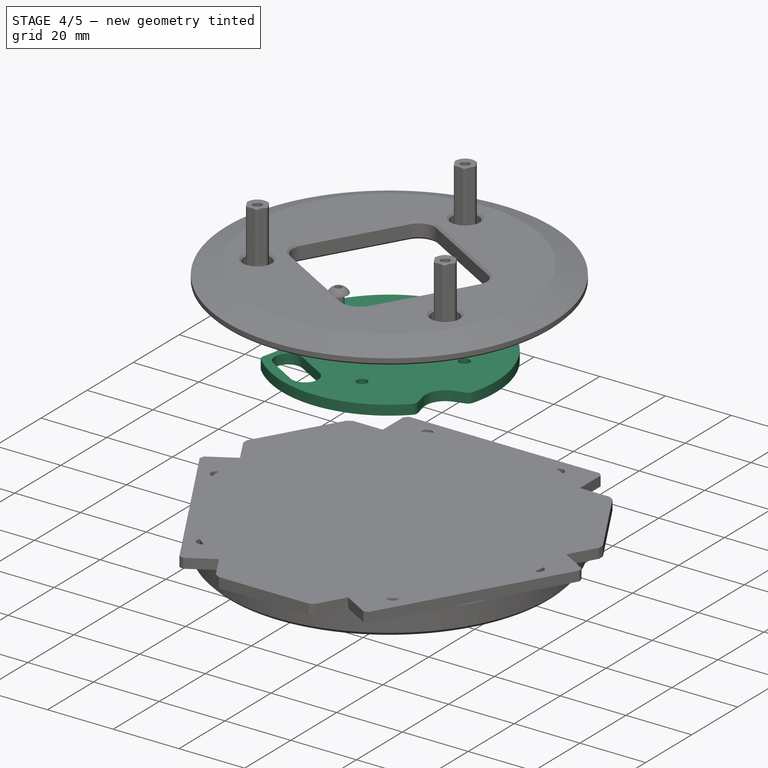
[diagram: stage 4 of 5 — iso view after this stage's code; geometry added in this stage tinted green]
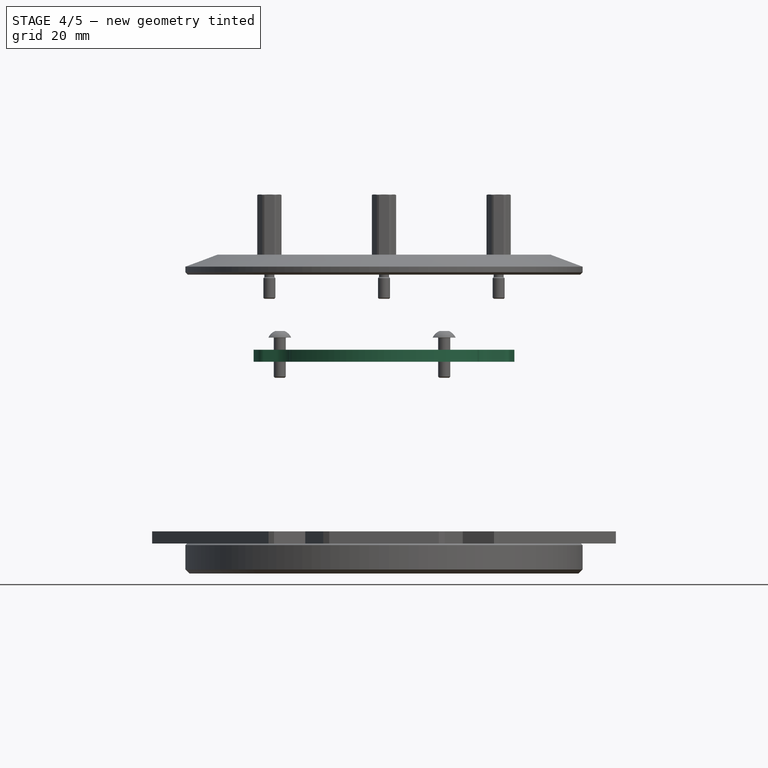
[diagram: stage 4 of 5 — front view after this stage's code; geometry added in this stage tinted green]
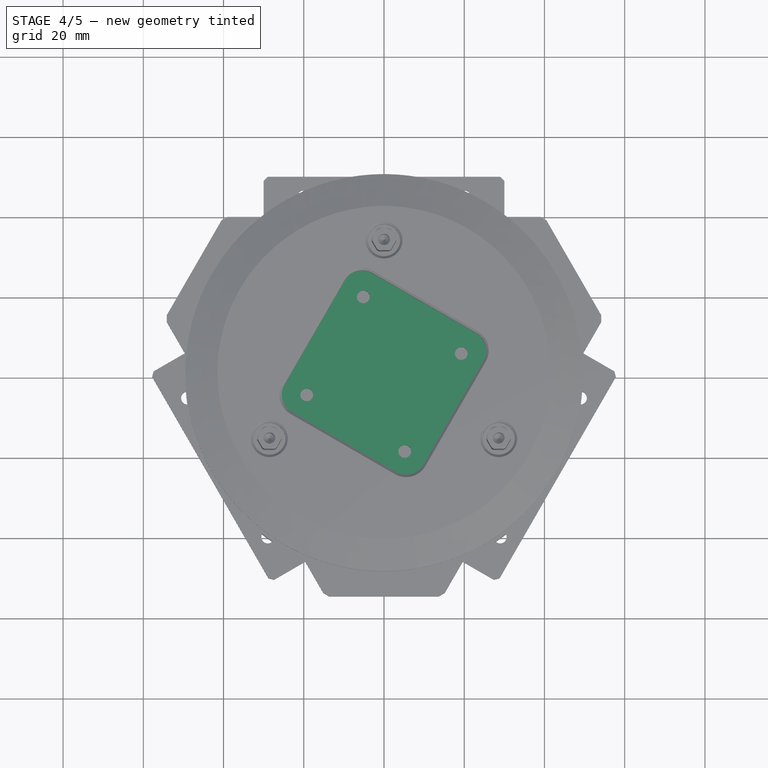
[diagram: stage 4 of 5 — top view after this stage's code; geometry added in this stage tinted green]
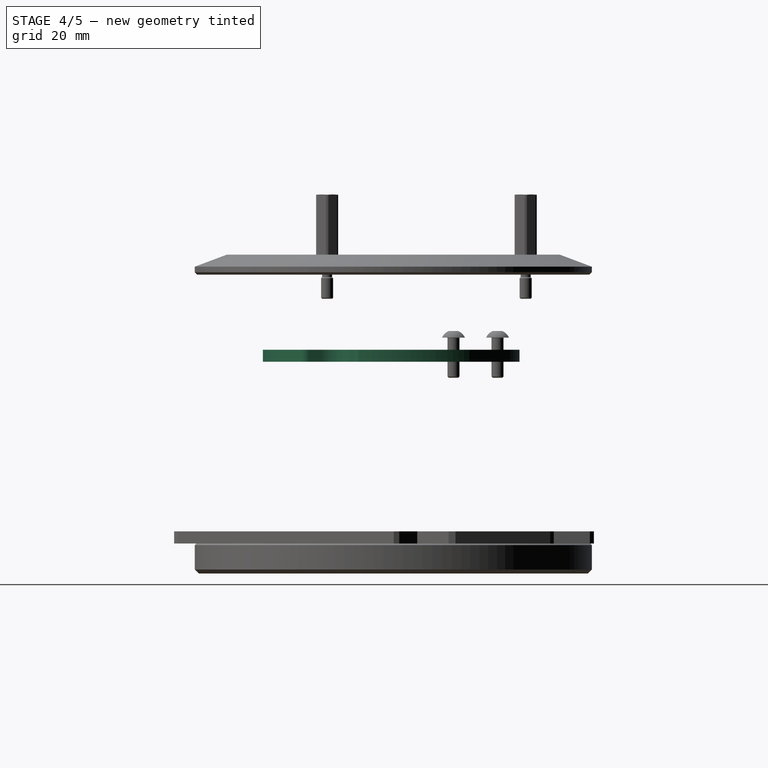
[diagram: stage 4 of 5 — right view after this stage's code; geometry added in this stage tinted green]
FEATURE [PartDesign::Chamfer] Chamfer005
  Angle = 45
  Base = -> Chamfer004 [Edge292]
  BaseFeature = -> Chamfer004
  ChamferType = 0
  FlipDirection = false
  Refine = true
  Size = 1
  Size2 = 1
  SupportTransform = false
  Suppressed = false
  UseAllEdges = false
FEATURE [PartDesign::Chamfer] Chamfer006
  Angle = 45
  Base = -> Chamfer005 [Edge51]
  BaseFeature = -> Chamfer005
  ChamferType = 0
  FlipDirection = false
  Refine = true
  Size = 1
  Size2 = 1
  SupportTransform = false
  Suppressed = false
  UseAllEdges = false
FEATURE [PartDesign::Chamfer] Chamfer007
  Angle = 45
  Base = -> Chamfer006 [Edge257,Edge354]
  BaseFeature = -> Chamfer006
  ChamferType = 0
  FlipDirection = false
  Refine = true
  Size = 0.4
  Size2 = 1
  SupportTransform = false
  Suppressed = false
  UseAllEdges = false
FEATURE [PartDesign::Chamfer] Chamfer008
  Angle = 45
  Base = -> Chamfer007 [Edge60,Edge147,Edge58,Edge56,Edge146]
  BaseFeature = -> Chamfer007
  ChamferType = 0
  FlipDirection = false
  Refine = true
  Size = 0.4
  Size2 = 1
  SupportTransform = false
  Suppressed = false
  UseAllEdges = false
FEATURE [Sketcher::SketchObject] Sketch061
  AttachmentSupport = -> [Chamfer008]
  FullyConstrained = true
  MapMode = 5
  Placement = pos=(-1.29e-14,1.57e-14,56) rot=(0,0,1;0rad)
  sketch-geometry (5):
    g0: ArcOfCircle CenterX=2.7639e-12 CenterY=-3.058e-13 CenterZ=0 NormalX=0 NormalY=0 NormalZ=1 AngleXU=0 Radius=39.1 StartAngle=5.32325 EndAngle=5.75959
    g1: ArcOfCircle CenterX=2.7639e-12 CenterY=-3.058e-13 CenterZ=0 NormalX=0 NormalY=0 NormalZ=1 AngleXU=0 Radius=46.8 StartAngle=5.32325 EndAngle=5.75959
    g2: LineSegment StartX=40.53 StartY=-23.4 StartZ=0 EndX=33.8616 EndY=-19.55 EndZ=0
    g3: LineSegment StartX=22.4268 StartY=-32.0288 StartZ=0 EndX=26.8434 EndY=-38.3363 EndZ=0
    g4: LineSegment StartX=2.7639e-12 StartY=-3.058e-13 StartZ=0 EndX=34.3752 EndY=-31.7582 EndZ=0
  constraints (15):
    c: Coincident(g0,g-1)
    c: Coincident(g1,g0)
    c: Coincident(g2,g1)
    c: Coincident(g2,g0)
    c: Coincident(g3,g0)
    c: Coincident(g3,g1)
    c: PointOnObject(g0,g2)
    c: PointOnObject(g0,g3)
    c: Radius(g0) = 39.1
    c: Radius(g1) = 46.8
    c: Angle(g2,g-1) = 0.523599
    c: Angle(g3,g-1) = 0.959931
    c: Coincident(g4,g0)
    c: PointOnObject(g4,g1)
    c: Distance(g4,g1) = 10
FEATURE [Sketcher::SketchObject] Sketch062
  AttachmentSupport = -> [Chamfer008]
  ExternalGeometry = -> [Chamfer008]
  FullyConstrained = true
  MapMode = 5
  Placement = pos=(0,0,39) rot=(1,0,0;3.14159rad)
  sketch-geometry (7):
    g0: ArcOfCircle CenterX=-4.215e-13 CenterY=2.551e-13 CenterZ=0 NormalX=0 NormalY=0 NormalZ=1 AngleXU=0 Radius=32 StartAngle=0.64511 EndAngle=1.0821
    g1: LineSegment StartX=25.5691 StartY=19.2412 StartZ=0 EndX=33.6769 EndY=25.3425 EndZ=0
    g2: LineSegment StartX=17.5464 StartY=33 StartZ=0 EndX=15.0231 EndY=28.2543 EndZ=0
    g3: Circle CenterX=28.5788 CenterY=16.5 CenterZ=0 NormalX=0 NormalY=0 NormalZ=1 AngleXU=0 Radius=4
    g4: LineSegment StartX=17.5464 StartY=33 StartZ=0 EndX=24.0597 EndY=33 EndZ=0
    g5: LineSegment StartX=33.6769 StartY=25.3425 StartZ=0 EndX=31.8539 EndY=28.5 EndZ=0
    g6: ArcOfCircle CenterX=24.0597 CenterY=24 CenterZ=0 NormalX=0 NormalY=0 NormalZ=1 AngleXU=0 Radius=9 StartAngle=0.523599 EndAngle=1.5708
  constraints (18):
    c: Coincident(g0,g-1)
    c: Coincident(g1,g0)
    c: Coincident(g2,g0)
    c: PointOnObject(g0,g2)
    c: Radius(g0) = 32
    c: PointOnObject(g0,g1)
    c: Coincident(g3,g-5)
    c: Tangent(g3,g1)
    c: Diameter(g3) = 8
    c: Angle(g2,g-2) = 0.488692
    c: Coincident(g4,g2)
    c: Horizontal(g4)
    c: Coincident(g5,g1)
    c: Parallel(g5,g-3)
    c: Tangent(g6,g5) = -1.5708
    c: Tangent(g6,g4) = 1.5708
    c: Coincident(g6,g-4)
    c: DistanceY(g4,g-4) = 1
FEATURE [PartDesign::SubtractiveLoft] Loft
  BaseFeature = -> Chamfer008
  Closed = false
  Profile = -> Sketch061
  Refine = true
  Ruled = false
  Sections = -> [Sketch062]
  Suppressed = false
FEATURE [Sketcher::SketchObject] Sketch063
  AttachmentSupport = -> [Loft]
  FullyConstrained = true
  MapMode = 5
  Placement = pos=(-1.29e-14,1.57e-14,56) rot=(0,0,1;0rad)
  sketch-geometry (6):
    g0: ArcOfCircle CenterX=-1.5419e-12 CenterY=-8.2642e-12 CenterZ=0 NormalX=0 NormalY=0 NormalZ=1 AngleXU=0 Radius=39.7306 StartAngle=5.88176 EndAngle=6.00393
    g1: ArcOfCircle CenterX=-1.5419e-12 CenterY=-8.2642e-12 CenterZ=0 NormalX=0 NormalY=0 NormalZ=1 AngleXU=0 Radius=47.3083 StartAngle=5.88176 EndAngle=6.00393
    g2: LineSegment StartX=38.1915 StartY=-10.9512 StartZ=0 EndX=45.4757 EndY=-13.0399 EndZ=0
    g3: LineSegment StartX=36.5722 StartY=-15.524 StartZ=0 EndX=43.5476 EndY=-18.4848 EndZ=0
    g4: Circle CenterX=38.9977 CenterY=-12.5932 CenterZ=0 NormalX=0 NormalY=0 NormalZ=1 AngleXU=0 Radius=1.25
    g5: Circle CenterX=42.9029 CenterY=-16.7545 CenterZ=0 NormalX=0 NormalY=0 NormalZ=1 AngleXU=0 Radius=1.25
  constraints (16):
    c: Coincident(g0,g-1)
    c: Coincident(g1,g0)
    c: Coincident(g2,g0)
    c: Coincident(g2,g1)
    c: Coincident(g3,g0)
    c: Coincident(g3,g1)
    c: PointOnObject(g0,g3)
    c: PointOnObject(g0,g2)
    c: Angle(g2,g-1) = 0.279253
    c: Angle(g3,g-1) = 0.401426
    c: Coincident(g4,g-3)
    c: Tangent(g4,g0)
    c: Coincident(g5,g-4)
    c: Tangent(g5,g1)
    c: Equal(g5,g4)
    c: Diameter(g5) = 2.5
FEATURE [PartDesign::Pocket] Pocket030
  BaseFeature = -> Loft
  Direction = (1,1,1)
  Length = 1
  Length2 = 100
  Profile = -> Sketch063
  Refine = true
  Suppressed = false
  Type = 0
FEATURE [PartDesign::Fillet] Fillet021
  Base = -> Pocket030 [Edge370,Edge368,Edge367,Edge372]
  BaseFeature = -> Pocket030
  Radius = 0.5
  Refine = true
  SupportTransform = false
  Suppressed = false
  UseAllEdges = false
FEATURE [PartDesign::Body] Body024  label="PlaqueDiffuse2023"
  Group = -> [Sketch046,Pad027,Fillet011]
  Origin = -> Origin032
  Placement = pos=(0,0,64) rot=(0,0,1;0rad)
  Tip = -> Fillet011
FEATURE [Part::Feature] Part__Feature008  label="SOLID"
  shape: bbox 2.54 x 35.56 x 10.1 mm, 444 faces (baked)
FEATURE [Part::Feature] Part__Feature009  label="SOLID001"
  shape: bbox 2.54 x 35.56 x 10.1 mm, 444 faces (baked)
FEATURE [Part::Feature] Part__Feature010  label="SOLID002"
  shape: bbox 36.49 x 17.84 x 13.56 mm, 217 faces (baked)
FEATURE [Part::Feature] Part__Feature011  label="SOLID003"
  shape: bbox 3.2 x 1.6 x 0.55 mm, 26 faces (baked)
FEATURE [Part::Feature] Part__Feature012  label="SOLID004"
  shape: bbox 10.16 x 5.8 x 15.26 mm, 117 faces (baked)
FEATURE [App::Part] Molex_KK_254_AE_6410_04A_1x04_P2_54mm_Vertical  label="Molex_KK-254_AE-6410-04A_1x04_P2.54mm_Vertical"
  Group = -> [Part__Feature012]
  Origin = -> Origin038
  Placement = pos=(20.9247,-16.9699,1.65) rot=(0,0,1;1.5708rad)
FEATURE [Part::Feature] Part__Feature013  label="SOLID005"
  shape: bbox 9.029 x 9.996 x 8.3 mm, 46 faces (baked)
FEATURE [App::Part] CP_Radial_D6_3mm_P2_50mm  label="CP_Radial_D6.3mm_P2.50mm"
  Group = -> [Part__Feature013]
  Origin = -> Origin039
  Placement = pos=(6.72054,-7.69514,1.65) rot=(0,0,1;2.61799rad)
FEATURE [Part::Feature] Part__Feature014  label="SOLID006"
  shape: bbox 11.58 x 8.66 x 5.4 mm, 41 faces (baked)
FEATURE [App::Part] CP_Elec_5x5_4  label="CP_Elec_5x5.4"
  Group = -> [Part__Feature014]
  Origin = -> Origin040
  Placement = pos=(-4.16154,-12.2435,1.65) rot=(0,0,1;1.0472rad)
FEATURE [Part::Feature] Part__Feature015  label="SOLID007"
  shape: bbox 3.2 x 1.6 x 1.1 mm, 50 faces (baked)
FEATURE [App::Part] LED_1206_3216Metric
  Group = -> [Part__Feature015]
  Origin = -> Origin041
  Placement = pos=(26.7509,-16.242,1.65) rot=(0,0,1;1.5708rad)
FEATURE [Part::Feature] Part__Feature016  label="SOLID008"
  shape: bbox 11.58 x 8.66 x 5.4 mm, 41 faces (baked)
FEATURE [App::Part] CP_Elec_5x5_4001  label="CP_Elec_5x5.005"
  Group = -> [Part__Feature016]
  Origin = -> Origin042
  Placement = pos=(-8.60654,-19.9424,1.65) rot=(0,0,1;4.18879rad)
FEATURE [Part::Feature] Part__Feature017  label="SOLID009"
  shape: bbox 8.508 x 9.04 x 1.7 mm, 78 faces (baked)
FEATURE [Part::Feature] Part__Feature018  label="SOLID010"
  shape: bbox 6.703 x 6.325 x 2.22 mm, 41 faces (baked)
FEATURE [App::Part] D_SMA
  Group = -> [Part__Feature018]
  Origin = -> Origin044
  Placement = pos=(-10.5497,-7.30815,1.65) rot=(0,0,1;2.61799rad)
FEATURE [Part::Feature] Part__Feature019  label="SOLID011"
  shape: bbox 10.16 x 5.8 x 15.26 mm, 117 faces (baked)
FEATURE [App::Part] Molex_KK_254_AE_6410_04A_1x04_P2_54mm_Vertical001  label="Molex_KK-254_AE-6410-04A_1x04_P2.54mm_Vertical001"
  Group = -> [Part__Feature019]
  Origin = -> Origin045
  Placement = pos=(-21.344,-8.0043,1.65) rot=(0,0,1;1.0472rad)
FEATURE [Part::Feature] Part__Feature020  label="SOLID012"
  shape: bbox 3.2 x 1.6 x 0.55 mm, 26 faces (baked)
FEATURE [Part::Feature] Part__Feature021  label="SOLID013"
  shape: bbox 3.2 x 1.6 x 0.55 mm, 26 faces (baked)
FEATURE [Part::Feature] Part__Feature022  label="SOLID014"
  shape: bbox 7.62 x 5.8 x 15.26 mm, 91 faces (baked)
FEATURE [App::Part] Molex_KK_254_AE_6410_03A_1x03_P2_54mm_Vertical  label="Molex_KK-254_AE-6410-03A_1x03_P2.54mm_Vertical"
  Group = -> [Part__Feature022]
  Origin = -> Origin048
  Placement = pos=(4.19504,-14.4293,-0.05) rot=(1,0,0;3.14159rad)
FEATURE [Part::Feature] Part__Feature023  label="SOLID015"
  shape: bbox 10.16 x 5.8 x 15.26 mm, 117 faces (baked)
FEATURE [App::Part] Molex_KK_254_AE_6410_04A_1x04_P2_54mm_Vertical002  label="Molex_KK-254_AE-6410-04A_1x04_P2.54mm_Vertical002"
  Group = -> [Part__Feature023]
  Origin = -> Origin049
  Placement = pos=(0.640674,-25.1547,-0.05) rot=(1,0,0;3.14159rad)
FEATURE [Part::Feature] Part__Feature024  label="MatDetection-2023 PCB"
  shape: bbox 68.84 x 76.19 x 1.6 mm, 426 faces (baked)
FEATURE [App::Part] PinSocket_1x14_P2_54mm_Vertical  label="PinSocket_1x14_P2.54mm_Vertical"
  Group = -> [Part__Feature008]
  Origin = -> Origin034
  Placement = pos=(30.4397,15.3192,1.65) rot=(0,0,-1;1.5708rad)
FEATURE [App::Part] PinSocket_1x14_P2_54mm_Vertical001  label="PinSocket_1x14_P2.54mm_Vertical001"
  Group = -> [Part__Feature009]
  Origin = -> Origin035
  Placement = pos=(30.4397,-0.00083,1.65) rot=(0,0,-1;1.5708rad)
FEATURE [App::Part] R_1206_3216Metric
  Group = -> [Part__Feature011]
  Origin = -> Origin037
  Placement = pos=(26.7443,-10.6655,1.65) rot=(0,0,-1;1.5708rad)
FEATURE [App::Part] R_1206_3216Metric001
  Group = -> [Part__Feature020]
  Origin = -> Origin046
  Placement = pos=(-10.9749,1.95551,1.65) rot=(0,0,1;2.61799rad)
FEATURE [App::Part] R_1206_3216Metric002
  Group = -> [Part__Feature021]
  Origin = -> Origin047
  Placement = pos=(-12.2299,-0.218213,1.65) rot=(0,0,1;2.61799rad)
FEATURE [App::Part] SOT_223  label="SOT-223"
  Group = -> [Part__Feature017]
  Origin = -> Origin043
  Placement = pos=(-14.0497,-13.3703,1.65) rot=(0,0,1;2.61799rad)
FEATURE [App::Part] Teensy_3_2  label="Teensy_3.2"
  Group = -> [Part__Feature010]
  Origin = -> Origin036
  Placement = pos=(13.9397,7.65917,11.65) rot=(0,0,1;3.14159rad)
FEATURE [App::Part] MatDetection_2023_1  label="LidarBoard-2023"
  Group = -> [PinSocket_1x14_P2_54mm_Vertical,PinSocket_1x14_P2_54mm_Vertical001,Teensy_3_2,R_1206_3216Metric,Molex_KK_254_AE_6410_04A_1x04_P2_54mm_Vertical,CP_Radial_D6_3mm_P2_50mm,CP_Elec_5x5_4,LED_1206_3216Metric,CP_Elec_5x5_4001,SOT_223,D_SMA,Molex_KK_254_AE_6410_04A_1x04_P2_54mm_Vertical001,R_1206_3216Metric001,R_1206_3216Metric002,Molex_KK_254_AE_6410_03A_1x03_P2_54mm_Vertical,+2 more]
  Origin = -> Origin050
  Placement = pos=(4.39792,-1.19238,22) rot=(0.258819,0.965926,0;3.14159rad)
FEATURE [Sketcher::SketchObject] Sketch054
  AttachmentSupport = -> [XY_Plane028]
  FullyConstrained = true
  MapMode = 5
  sketch-geometry (2):
    g0: Circle CenterX=0 CenterY=0 CenterZ=0 NormalX=0 NormalY=0 NormalZ=1 AngleXU=0 Radius=48
    g1: Circle CenterX=0 CenterY=0 CenterZ=0 NormalX=0 NormalY=0 NormalZ=1 AngleXU=0 Radius=38.75
  constraints (4):
    c: Diameter(g1) = 77.5
    c: Diameter(g0) = 96
    c: Coincident(g1,g-1)
    c: Coincident(g0,g1)
FEATURE [PartDesign::Pad] Pad029
  AlongSketchNormal = false
  Direction = (0,0,1)
  Length = 1.6
  Length2 = 100
  Profile = -> Sketch054
  Refine = true
  Suppressed = false
  Type = 0
FEATURE [Sketcher::SketchObject] Sketch055
  AttachmentSupport = -> [XY_Plane028]
  FullyConstrained = true
  MapMode = 5
  Placement = pos=(0,0,0) rot=(0,1,0;3.14159rad)
  sketch-geometry (28):
    g0: ArcOfCircle CenterX=-1.3 CenterY=46.04 CenterZ=0 NormalX=0 NormalY=0 NormalZ=1 AngleXU=0 Radius=0.9 StartAngle=1.5708 EndAngle=4.71239
    g1: ArcOfCircle CenterX=1.3 CenterY=46.04 CenterZ=0 NormalX=0 NormalY=0 NormalZ=1 AngleXU=0 Radius=0.9 StartAngle=4.71239 EndAngle=7.85398
    g2: LineSegment StartX=-1.3 StartY=45.14 StartZ=0 EndX=1.3 EndY=45.14 EndZ=0
    g3: LineSegment StartX=1.3 StartY=46.94 StartZ=0 EndX=-1.3 EndY=46.94 EndZ=0
    g4: ArcOfCircle CenterX=-1.3 CenterY=43.5 CenterZ=0 NormalX=0 NormalY=0 NormalZ=1 AngleXU=0 Radius=0.9 StartAngle=1.5708 EndAngle=4.71239
    g5: ArcOfCircle CenterX=1.3 CenterY=43.5 CenterZ=0 NormalX=0 NormalY=0 NormalZ=1 AngleXU=0 Radius=0.9 StartAngle=4.71239 EndAngle=7.85398
    g6: LineSegment StartX=-1.3 StartY=42.6 StartZ=0 EndX=1.3 EndY=42.6 EndZ=0
    g7: LineSegment StartX=1.3 StartY=44.4 StartZ=0 EndX=-1.3 EndY=44.4 EndZ=0
    g8: ArcOfCircle CenterX=-1.3 CenterY=40.96 CenterZ=0 NormalX=0 NormalY=0 NormalZ=1 AngleXU=0 Radius=0.9 StartAngle=1.5708 EndAngle=4.71239
    g9: ArcOfCircle CenterX=1.3 CenterY=40.96 CenterZ=0 NormalX=0 NormalY=0 NormalZ=1 AngleXU=0 Radius=0.9 StartAngle=4.71239 EndAngle=7.85398
    g10: LineSegment StartX=-1.3 StartY=40.06 StartZ=0 EndX=1.3 EndY=40.06 EndZ=0
    g11: LineSegment StartX=1.3 StartY=41.86 StartZ=0 EndX=-1.3 EndY=41.86 EndZ=0
    g12: ArcOfCircle CenterX=-13.1668 CenterY=44.2127 CenterZ=0 NormalX=0 NormalY=0 NormalZ=1 AngleXU=0 Radius=0.9 StartAngle=1.80385 EndAngle=4.94544
    g13: ArcOfCircle CenterX=-10.6371 CenterY=44.8132 CenterZ=0 NormalX=0 NormalY=0 NormalZ=1 AngleXU=0 Radius=0.9 StartAngle=4.94544 EndAngle=8.08703
    g14: LineSegment StartX=-12.959 StartY=43.3371 StartZ=0 EndX=-10.4293 EndY=43.9375 EndZ=0
    g15: LineSegment StartX=-10.845 StartY=45.6889 StartZ=0 EndX=-13.3747 EndY=45.0884 EndZ=0
    g16: ArcOfCircle CenterX=-12.5805 CenterY=41.7425 CenterZ=0 NormalX=0 NormalY=0 NormalZ=1 AngleXU=0 Radius=0.9 StartAngle=1.80385 EndAngle=4.94544
    g17: ArcOfCircle CenterX=-10.0508 CenterY=42.343 CenterZ=0 NormalX=0 NormalY=0 NormalZ=1 AngleXU=0 Radius=0.9 StartAngle=4.94544 EndAngle=8.08703
    g18: LineSegment StartX=-12.3726 StartY=40.8668 StartZ=0 EndX=-9.84292 EndY=41.4673 EndZ=0
    g19: LineSegment StartX=-10.2586 StartY=43.2186 StartZ=0 EndX=-12.7883 EndY=42.6182 EndZ=0
    g20: ArcOfCircle CenterX=-11.9941 CenterY=39.2723 CenterZ=0 NormalX=0 NormalY=0 NormalZ=1 AngleXU=0 Radius=0.9 StartAngle=1.80385 EndAngle=4.94544
    g21: ArcOfCircle CenterX=-9.46443 CenterY=39.8727 CenterZ=0 NormalX=0 NormalY=0 NormalZ=1 AngleXU=0 Radius=0.9 StartAngle=4.94544 EndAngle=8.08703
    g22: LineSegment StartX=-11.7863 StartY=38.3966 StartZ=0 EndX=-9.25658 EndY=38.9971 EndZ=0
    g23: LineSegment StartX=-9.67228 StartY=40.7484 StartZ=0 EndX=-12.202 EndY=40.148 EndZ=0
    g24: LineSegment StartX=-10.6371 StartY=44.8132 StartZ=0 EndX=0 EndY=0 EndZ=0
    g25: LineSegment StartX=-12.5805 StartY=41.7425 StartZ=0 EndX=-10.0508 EndY=42.343 EndZ=0
    g26: Circle CenterX=0 CenterY=0 CenterZ=0 NormalX=0 NormalY=0 NormalZ=1 AngleXU=0 Radius=46.0583
    g27: Circle CenterX=0 CenterY=0 CenterZ=0 NormalX=0 NormalY=0 NormalZ=1 AngleXU=0 Radius=40.9806
  constraints (65):
    c: Tangent(g0,g2) = -1.5708
    c: Tangent(g2,g1) = -1.5708
    c: Tangent(g1,g3) = -1.5708
    c: Tangent(g3,g0) = -1.5708
    c: Equal(g0,g1)
    c: Tangent(g4,g6) = -1.5708
    c: Tangent(g6,g5) = -1.5708
    c: Tangent(g5,g7) = -1.5708
    c: Tangent(g7,g4) = -1.5708
    c: Equal(g4,g5)
    c: Tangent(g8,g10) = -1.5708
    c: Tangent(g10,g9) = -1.5708
    c: Tangent(g9,g11) = -1.5708
    c: Tangent(g11,g8) = -1.5708
    c: Equal(g8,g9)
    c: Equal(g2,g11)
    c: Equal(g11,g6)
    c: Horizontal(g7)
    c: Horizontal(g11)
    c: Equal(g0,g4)
    c: Equal(g4,g8)
    c: Symmetric(g0,g1,g-2)
    c: Vertical(g1,g5)
    c: Radius(g1) = 0.9
    c: Symmetric(g9,g1,g5)
    c: DistanceX(g0,g1) = 2.6
    c: DistanceY(g-1,g5) = 43.5
    c: DistanceY(g9,g1) = 5.08
    c: Tangent(g12,g14) = -1.5708
    c: Tangent(g14,g13) = -1.5708
    c: Tangent(g13,g15) = -1.5708
    c: Tangent(g15,g12) = -1.5708
    c: Equal(g12,g13)
    c: Tangent(g16,g18) = -1.5708
    c: Tangent(g18,g17) = -1.5708
    c: Tangent(g17,g19) = -1.5708
    c: Tangent(g19,g16) = -1.5708
    c: Equal(g16,g17)
    c: Tangent(g20,g22) = -1.5708
    c: Tangent(g22,g21) = -1.5708
    c: Tangent(g21,g23) = -1.5708
    c: Tangent(g23,g20) = -1.5708
    c: Equal(g20,g21)
    c: Equal(g21,g17)
    c: Equal(g17,g13)
    c: Equal(g13,g4)
    c: Equal(g14,g19)
    c: Equal(g19,g23)
    c: Equal(g23,g11)
    c: PointOnObject(g17,g24)
    c: Parallel(g23,g18)
    c: Parallel(g18,g14)
    c: Perpendicular(g24,g25)
    c: Coincident(g25,g17)
    c: Coincident(g16,g25)
    c: Coincident(g13,g24)
    c: PointOnObject(g13,g26)
    c: Coincident(g26,g24)
    c: Coincident(g26,g-1)
    c: PointOnObject(g0,g26)
    c: Symmetric(g21,g13,g17)
    c: PointOnObject(g8,g27)
    c: PointOnObject(g21,g27)
    c: Coincident(g27,g24)
    c: Distance(g13,g1) = 12
FEATURE [PartDesign::Pad] Pad030
  AlongSketchNormal = false
  BaseFeature = -> Pad029
  Direction = (0,0,-1)
  Length = 1
  Length2 = 100
  Profile = -> Sketch055
  Refine = true
  Suppressed = false
  Type = 0
FEATURE [PartDesign::Fillet] Fillet018
  Base = -> Pad030 [Edge75,Edge67,Edge59,Edge35,Edge43,Edge51]
  BaseFeature = -> Pad030
  Radius = 0.8
  Refine = true
  SupportTransform = false
  Suppressed = false
  UseAllEdges = false
FEATURE [PartDesign::Body] Body026  label="PCBRingLed"
  Group = -> [Sketch054,Pad029,Sketch055,Pad030,Fillet018,Sketch060,Pocket029,Fillet020]
  Origin = -> Origin052
  Tip = -> Fillet020
FEATURE [App::Part] Part006  label="Ring35Leds"
  Group = -> [Body026,Body027]
  Origin = -> Origin051
  Placement = pos=(-1.32e-14,1.77e-14,59) rot=(0,0,-1;1.91488rad)
FEATURE [PartDesign::ShapeBinder] ShapeBinder
  Support = -> [Fillet021]
  TraceSupport = false
FEATURE [Sketcher::SketchObject] Sketch064
  AttachmentSupport = -> [ShapeBinder]
  ExternalGeometry = -> [ShapeBinder]
  FullyConstrained = true
  MapMode = 5
  Placement = pos=(-1e-14,1.31e-14,45.3) rot=(0,0,1;0rad)
  sketch-geometry (20):
    g0: Circle CenterX=-25.9808 CenterY=15 CenterZ=0 NormalX=0 NormalY=0 NormalZ=1 AngleXU=0 Radius=1.6
    g1: Circle CenterX=15 CenterY=25.9808 CenterZ=0 NormalX=0 NormalY=0 NormalZ=1 AngleXU=0 Radius=1.6
    g2: ArcOfCircle CenterX=28.5788 CenterY=-16.5 CenterZ=0 NormalX=0 NormalY=0 NormalZ=1 AngleXU=0 Radius=6 StartAngle=1.8551 EndAngle=3.38089
    g3: ArcOfCircle CenterX=-28.5788 CenterY=-16.5 CenterZ=0 NormalX=0 NormalY=0 NormalZ=1 AngleXU=0 Radius=6 StartAngle=6.04389 EndAngle=7.56968
    g4: ArcOfCircle CenterX=6.5275e-12 CenterY=33 CenterZ=0 NormalX=0 NormalY=0 NormalZ=1 AngleXU=0 Radius=6 StartAngle=3.94949 EndAngle=5.47528
    g5: ArcOfCircle CenterX=1.6239e-11 CenterY=6.14944e-11 CenterZ=0 NormalX=0 NormalY=0 NormalZ=1 AngleXU=0 Radius=32.5 StartAngle=5.98591 EndAngle=7.62766
    g6: ArcOfCircle CenterX=1.6239e-11 CenterY=6.14944e-11 CenterZ=0 NormalX=0 NormalY=0 NormalZ=1 AngleXU=0 Radius=32.5 StartAngle=3.89151 EndAngle=5.53326
    g7: ArcOfCircle CenterX=1.6239e-11 CenterY=6.14944e-11 CenterZ=0 NormalX=0 NormalY=0 NormalZ=1 AngleXU=0 Radius=32.5 StartAngle=1.79712 EndAngle=3.43887
    g8: LineSegment StartX=-4.1461 StartY=28.663 StartZ=0 EndX=-7.29285 EndY=31.6712 EndZ=0
    g9: LineSegment StartX=4.1461 StartY=28.663 StartZ=0 EndX=7.29285 EndY=31.6712 EndZ=0
    g10: LineSegment StartX=26.8959 StartY=-10.7409 StartZ=0 EndX=31.0745 EndY=-9.5198 EndZ=0
    g11: LineSegment StartX=22.7498 StartY=-17.9221 StartZ=0 EndX=23.7816 EndY=-22.1514 EndZ=0
    g12: LineSegment StartX=-23.7816 StartY=-22.1514 StartZ=0 EndX=-22.7498 EndY=-17.9221 EndZ=0
    g13: LineSegment StartX=-31.0745 StartY=-9.5198 StartZ=0 EndX=-26.8959 EndY=-10.7409 EndZ=0
    g14: ArcOfCircle CenterX=-17.0875 CenterY=-19.5964 CenterZ=0 NormalX=0 NormalY=0 NormalZ=1 AngleXU=0 Radius=4 StartAngle=1.0472 EndAngle=4.18879
    g15: ArcOfCircle CenterX=-8.42722 CenterY=-24.5964 CenterZ=0 NormalX=0 NormalY=0 NormalZ=1 AngleXU=0 Radius=4 StartAngle=4.18879 EndAngle=7.33038
    g16: LineSegment StartX=-19.0875 StartY=-23.0605 StartZ=0 EndX=-10.4272 EndY=-28.0605 EndZ=0
    g17: LineSegment StartX=-6.42722 StartY=-21.1323 StartZ=0 EndX=-15.0875 EndY=-16.1323 EndZ=0
    g18: LineSegment StartX=-17.0875 StartY=-19.5964 StartZ=0 EndX=-8.42722 EndY=-24.5964 EndZ=0
    g19: LineSegment StartX=-12.7574 StartY=-22.0964 StartZ=0 EndX=1.62395e-11 EndY=6.14939e-11 EndZ=0
  constraints (48):
    c: Coincident(g0,g-4)
    c: Coincident(g1,g-3)
    c: Equal(g1,g0)
    c: Diameter(g1) = 3.2
    c: Coincident(g2,g-6)
    c: Coincident(g3,g-7)
    c: Coincident(g4,g-5)
    c: Coincident(g5,g-10)
    c: Coincident(g6,g5)
    c: Coincident(g7,g5)
    c: Equal(g5,g7)
    c: Equal(g7,g6)
    c: Equal(g4,g2)
    c: Equal(g2,g3)
    c: Tangent(g-3,g5)
    c: Coincident(g8,g7)
    c: Coincident(g9,g5)
    c: Coincident(g10,g5)
    c: Coincident(g11,g6)
    c: Coincident(g12,g6)
    c: Coincident(g13,g7)
    c: Tangent(g13,g3) = 1.5708
    c: Tangent(g12,g3) = -1.5708
    c: Tangent(g11,g2) = -1.5708
    c: Tangent(g10,g2) = 1.5708
    c: Tangent(g9,g4) = -1.5708
    c: Tangent(g8,g4) = 1.5708
    c: Equal(g13,g12)
    c: Equal(g12,g11)
    c: Equal(g11,g10)
    c: Equal(g10,g9)
    c: Equal(g9,g8)
    c: Radius(g4) = 6
    c: PointOnObject(g-9,g9)
    c: Tangent(g14,g16) = -1.5708
    c: Tangent(g16,g15) = -1.5708
    c: Tangent(g15,g17) = -1.5708
    c: Tangent(g17,g14) = -1.5708
    c: Equal(g14,g15)
    c: Tangent(g15,g-11)
    c: Coincident(g18,g14)
    c: Coincident(g18,g15)
    c: Coincident(g19,g5)
    c: Symmetric(g14,g15,g19)
    c: Perpendicular(g19,g18)
    c: Radius(g15) = 4
    c: Distance(g17) = 10
    c: Angle(g-2,g19) = 2.61799
FEATURE [PartDesign::Pad] Pad033
  AlongSketchNormal = false
  Direction = (-2e-16,3e-16,1)
  Length = 3
  Length2 = 100
  Profile = -> Sketch064
  Refine = true
  Suppressed = false
  Type = 0
FEATURE [PartDesign::Fillet] Fillet022
  Base = -> Pad033 [Edge11,Edge20,Edge2,Edge8,Edge32,Edge23]
  BaseFeature = -> Pad033
  Radius = 2
  Refine = true
  SupportTransform = false
  Suppressed = false
  UseAllEdges = false
FEATURE [PartDesign::Pocket] Pocket031
  BaseFeature = -> Fillet022
  Direction = (1,1,1)
  Length = 5
  Length2 = 100
  Refine = true
  Suppressed = false
  Type = 1
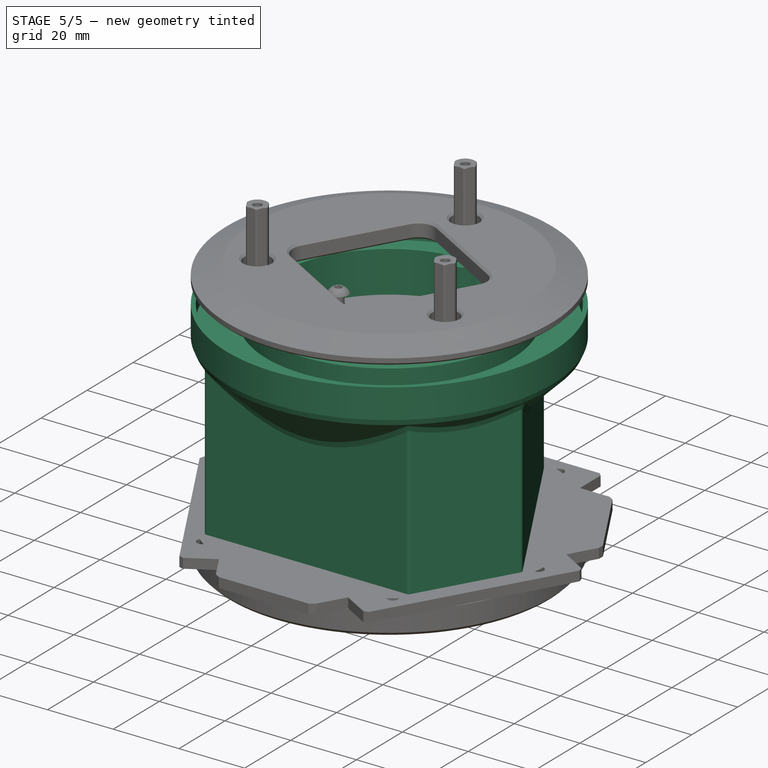
[diagram: stage 5 of 5 — iso view after this stage's code; geometry added in this stage tinted green]
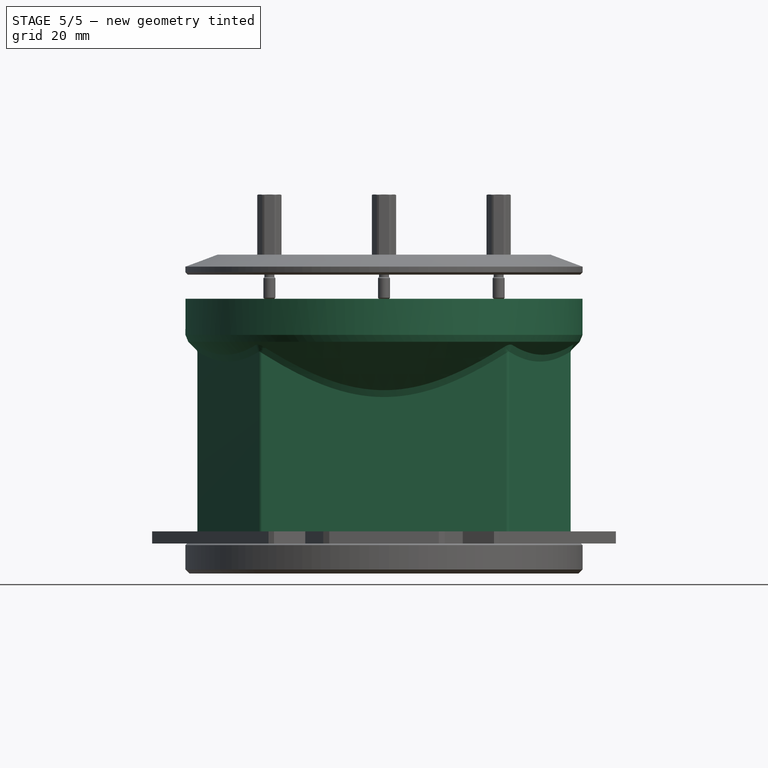
[diagram: stage 5 of 5 — front view after this stage's code; geometry added in this stage tinted green]
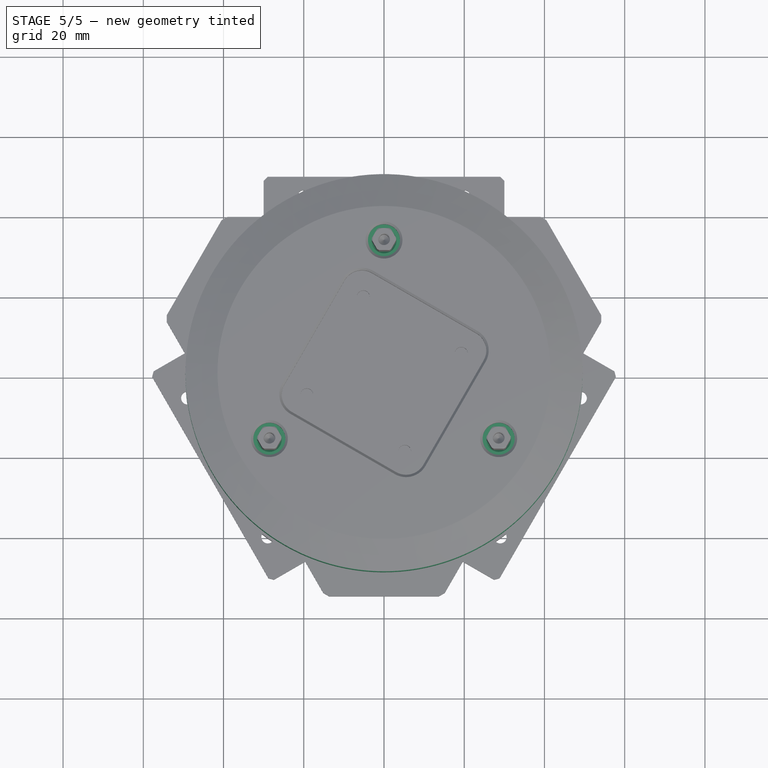
[diagram: stage 5 of 5 — top view after this stage's code; geometry added in this stage tinted green]
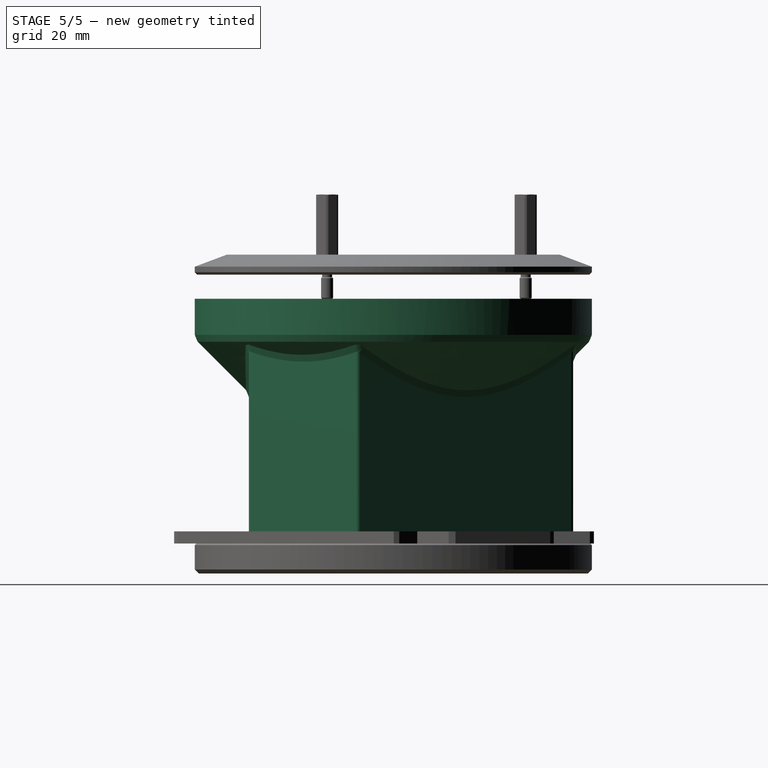
[diagram: stage 5 of 5 — right view after this stage's code; geometry added in this stage tinted green]
FEATURE [PartDesign::Pad] Pad037
  AlongSketchNormal = false
  BaseFeature = -> Fillet021
  Direction = (0,0,-1)
  Length = 10
  Length2 = 100
  Refine = true
  Reversed = true
  Suppressed = false
  Type = 3
  UpToFace = -> Fillet021 [Face103]
FEATURE [PartDesign::Pocket] Pocket033
  BaseFeature = -> Pad037
  Direction = (1,1,1)
  Length = 0
  Length2 = 100
  Refine = true
  Suppressed = false
  Type = 3
  UpToFace = -> Pad037 [Face188]
FEATURE [PartDesign::Fillet] Fillet025
  Base = -> Pocket033 [Edge112,Edge118,Edge120,Edge106,Edge72,Edge75]
  BaseFeature = -> Pocket033
  Radius = 0.9
  Refine = true
  SupportTransform = false
  Suppressed = false
  UseAllEdges = false
FEATURE [PartDesign::Chamfer] Chamfer009
  Angle = 45
  Base = -> Fillet025 [Edge4]
  BaseFeature = -> Fillet025
  ChamferType = 0
  FlipDirection = false
  Refine = true
  Size = 0.4
  Size2 = 1
  SupportTransform = false
  Suppressed = false
  UseAllEdges = false
FEATURE [Sketcher::SketchObject] Sketch070
  AttachmentSupport = -> [XY_Plane024]
  ExternalGeometry = -> [Fillet021]
  FullyConstrained = true
  MapMode = 5
  Placement = pos=(0,0,0) rot=(0,1,0;3.14159rad)
  sketch-geometry (11):
    g0: LineSegment StartX=24.8288 StartY=22.9952 StartZ=0 EndX=27.4269 EndY=24.4952 EndZ=0
    g1: LineSegment StartX=27.4269 StartY=24.4952 StartZ=0 EndX=34.9269 EndY=11.5048 EndZ=0
    g2: LineSegment StartX=34.9269 StartY=11.5048 StartZ=0 EndX=32.3288 EndY=10.0048 EndZ=0
    g3: LineSegment StartX=32.3288 StartY=10.0048 StartZ=0 EndX=24.8288 EndY=22.9952 EndZ=0
    g4: GeomPoint X=31.1769 Y=18 Z=0
    g5: LineSegment StartX=37.909 StartY=10.3397 StartZ=0 EndX=36.1769 EndY=9.33975 EndZ=0
    g6: LineSegment StartX=26.1769 StartY=26.6603 StartZ=0 EndX=27.909 EndY=27.6603 EndZ=0
    g7: LineSegment StartX=27.909 StartY=27.6603 StartZ=0 EndX=37.909 EndY=10.3397 EndZ=0
    g8: LineSegment StartX=26.1769 StartY=26.6603 StartZ=0 EndX=24.4449 EndY=25.6603 EndZ=0
    g9: LineSegment StartX=24.4449 StartY=25.6603 StartZ=0 EndX=34.4449 EndY=8.33975 EndZ=0
    g10: LineSegment StartX=34.4449 StartY=8.33975 StartZ=0 EndX=36.1769 EndY=9.33975 EndZ=0
  constraints (27):
    c: Coincident(g0,g1)
    c: Coincident(g1,g2)
    c: Coincident(g2,g3)
    c: Coincident(g3,g0)
    c: Parallel(g0,g2)
    c: Parallel(g1,g3)
    c: Perpendicular(g1,g0)
    c: PointOnObject(g1,g-3)
    c: Distance(g2) = 3
    c: Distance(g1) = 15
    c: Symmetric(g0,g1,g4)
    c: Symmetric(g-3,g-3,g4)
    c: Coincident(g6,g7)
    c: Coincident(g7,g5)
    c: Parallel(g5,g6)
    c: PointOnObject(g6,g-3)
    c: Symmetric(g6,g5,g4)
    c: Distance(g6) = 2
    c: Distance(g7) = 20
    c: Perpendicular(g6,g7)
    c: PointOnObject(g8,g-4)
    c: Coincident(g9,g8)
    c: PointOnObject(g9,g-4)
    c: Coincident(g10,g9)
    c: Tangent(g10,g5) = 1.5708
    c: Tangent(g8,g6) = 1.5708
    c: Parallel(g7,g9)
FEATURE [PartDesign::Body] Body023  label="CoqueLidar2023"
  Group = -> [Sketch042,Pad026,Sketch043,Revolution004,Sketch044,Pocket019,Sketch045,Pocket020,Sketch047,Pocket021,Fillet012,Sketch048,Pocket022,Pocket023,Sketch049,Sketch050,Pocket024,Sketch051,Pocket025,Fillet013,Fillet014,Fillet015,Sketch052,Pocket026,Fillet016,Chamfer002,Chamfer003,Chamfer004,Chamfer005,Chamfer006,Chamfer007,Chamfer008,Sketch061,Sketch062,Loft,Sketch063,Pocket030,Fillet021,Sketch070,Pad037,+3 more]
  Origin = -> Origin031
  Placement = pos=(0,0,3) rot=(0,0,1;0rad)
  Tip = -> Chamfer009
FEATURE [Sketcher::SketchObject] Sketch046
  AttachmentSupport = -> [XY_Plane025]
  FullyConstrained = true
  MapMode = 5
  sketch-geometry (12):
    g0: Circle CenterX=-1.6806e-12 CenterY=-6.0018e-12 CenterZ=0 NormalX=0 NormalY=0 NormalZ=1 AngleXU=0 Radius=49.5
    g1: LineSegment StartX=-27.3205 StartY=-7.32051 StartZ=0 EndX=-7.32051 EndY=27.3205 EndZ=0
    g2: LineSegment StartX=-7.32051 StartY=27.3205 StartZ=0 EndX=27.3205 EndY=7.32051 EndZ=0
    g3: LineSegment StartX=27.3205 StartY=7.32051 StartZ=0 EndX=7.32051 EndY=-27.3205 EndZ=0
    g4: LineSegment StartX=7.32051 StartY=-27.3205 StartZ=0 EndX=-27.3205 EndY=-7.32051 EndZ=0
    g5: GeomPoint X=-1.6806e-12 Y=-6.0018e-12 Z=0
    g6: Circle CenterX=1.962e-13 CenterY=33 CenterZ=0 NormalX=0 NormalY=0 NormalZ=1 AngleXU=0 Radius=1.6
    g7: Circle CenterX=28.5788 CenterY=-16.5 CenterZ=0 NormalX=0 NormalY=0 NormalZ=1 AngleXU=0 Radius=1.6
    g8: Circle CenterX=-28.5788 CenterY=-16.5 CenterZ=0 NormalX=0 NormalY=0 NormalZ=1 AngleXU=0 Radius=1.6
    g9: LineSegment StartX=-28.5788 StartY=-16.5 StartZ=0 EndX=-1.6804e-12 EndY=-6.0005e-12 EndZ=0
    g10: LineSegment StartX=-1.6806e-12 StartY=-6.0018e-12 StartZ=0 EndX=28.5788 EndY=-16.5 EndZ=0
    g11: LineSegment StartX=-1.6806e-12 StartY=-6.0018e-12 StartZ=0 EndX=1.962e-13 EndY=33 EndZ=0
  constraints (29):
    c: Coincident(g0,g-1)
    c: Diameter(g0) = 99
    c: Coincident(g1,g2)
    c: Coincident(g2,g3)
    c: Coincident(g3,g4)
    c: Coincident(g4,g1)
    c: Parallel(g2,g4)
    c: Parallel(g1,g3)
    c: Symmetric(g2,g1,g5)
    c: Coincident(g5,g0)
    c: Perpendicular(g1,g2)
    c: Equal(g3,g2)
    c: Angle(g-2,g4) = 1.0472
    c: Distance(g3) = 40
    c: PointOnObject(g6,g-2)
    c: Equal(g8,g6)
    c: Equal(g8,g7)
    c: Diameter(g8) = 3.2
    c: DistanceY(g0,g6) = 33
    c: Coincident(g9,g8)
    c: Coincident(g9,g0)
    c: Coincident(g10,g0)
    c: Coincident(g10,g7)
    c: Coincident(g11,g0)
    c: Coincident(g11,g6)
    c: Equal(g9,g10)
    c: Equal(g10,g11)
    c: Angle(g10,g11) = 2.0944
    c: Angle(g11,g9) = 2.0944
FEATURE [PartDesign::Pad] Pad027
  AlongSketchNormal = false
  Direction = (0,0,1)
  Length = 3
  Length2 = 100
  Profile = -> Sketch046
  Refine = true
  Suppressed = false
  Type = 0
FEATURE [PartDesign::Fillet] Fillet011
  Base = -> Pad027 [Edge4,Edge11,Edge8,Edge5]
  BaseFeature = -> Pad027
  Radius = 5
  Refine = true
  SupportTransform = false
  Suppressed = false
  UseAllEdges = false
FEATURE [Sketcher::SketchObject] Sketch056
  AttachmentSupport = -> [XY_Plane029]
  FullyConstrained = true
  MapMode = 5
  sketch-geometry (5):
    g0: LineSegment StartX=-2.5 StartY=46 StartZ=0 EndX=-2.5 EndY=41 EndZ=0
    g1: LineSegment StartX=-2.5 StartY=41 StartZ=0 EndX=2.5 EndY=41 EndZ=0
    g2: LineSegment StartX=2.5 StartY=41 StartZ=0 EndX=2.5 EndY=46 EndZ=0
    g3: LineSegment StartX=2.5 StartY=46 StartZ=0 EndX=-2.5 EndY=46 EndZ=0
    g4: GeomPoint X=-3.2055e-12 Y=43.5 Z=0
  constraints (13):
    c: Coincident(g0,g1)
    c: Coincident(g1,g2)
    c: Coincident(g2,g3)
    c: Coincident(g3,g0)
    c: Horizontal(g1)
    c: Horizontal(g3)
    c: Vertical(g0)
    c: Vertical(g2)
    c: Symmetric(g1,g0,g4)
    c: PointOnObject(g4,g-2)
    c: Equal(g3,g2)
    c: DistanceX(g3,g3) = 5
    c: DistanceY(g4) = 43.5
FEATURE [PartDesign::Pad] Pad031
  AlongSketchNormal = false
  Direction = (0,0,1)
  Length = 1.4
  Length2 = 100
  Profile = -> Sketch056
  Refine = true
  Suppressed = false
  Type = 0
FEATURE [Sketcher::SketchObject] Sketch057
  AttachmentSupport = -> [Pad031]
  ExternalGeometry = -> [Pad031]
  FullyConstrained = true
  MapMode = 5
  Placement = pos=(0,0,1.4) rot=(0,0,1;0rad)
  sketch-geometry (2):
    g0: Circle CenterX=-7.43e-14 CenterY=43.5 CenterZ=0 NormalX=0 NormalY=0 NormalZ=1 AngleXU=0 Radius=2
    g1: LineSegment StartX=-2.5 StartY=41 StartZ=0 EndX=2.5 EndY=46 EndZ=0
  constraints (5):
    c: PointOnObject(g0,g-2)
    c: Diameter(g0) = 4
    c: Coincident(g1,g-4)
    c: Coincident(g1,g-3)
    c: PointOnObject(g0,g1)
FEATURE [PartDesign::Pocket] Pocket027
  BaseFeature = -> Pad031
  Direction = (1,1,1)
  Length = 0.4
  Length2 = 100
  Profile = -> Sketch057
  Refine = true
  Suppressed = false
  TaperAngle = -30
  Type = 0
FEATURE [Sketcher::SketchObject] Sketch058
  AttachmentSupport = -> [Pocket027]
  ExternalGeometry = -> [Pocket027]
  FullyConstrained = true
  MapMode = 5
  Placement = pos=(0,0,1.4) rot=(0,0,1;0rad)
  sketch-geometry (3):
    g0: LineSegment StartX=2.5 StartY=46 StartZ=0 EndX=1.5 EndY=46 EndZ=0
    g1: LineSegment StartX=1.5 StartY=46 StartZ=0 EndX=2.5 EndY=45 EndZ=0
    g2: LineSegment StartX=2.5 StartY=45 StartZ=0 EndX=2.5 EndY=46 EndZ=0
  constraints (8):
    c: Coincident(g0,g-4)
    c: PointOnObject(g0,g-3)
    c: Coincident(g1,g0)
    c: PointOnObject(g1,g-4)
    c: Coincident(g2,g0)
    c: Equal(g2,g0)
    c: Coincident(g2,g1)
    c: DistanceX(g0,g0) = 1
FEATURE [PartDesign::Pocket] Pocket028
  BaseFeature = -> Pocket027
  Direction = (1,1,1)
  Length = 0.2
  Length2 = 100
  Profile = -> Sketch058
  Refine = true
  Suppressed = false
  Type = 0
FEATURE [Sketcher::SketchObject] Sketch059
  AttachmentSupport = -> [XY_Plane029]
  ExternalGeometry = -> [Pocket028]
  FullyConstrained = true
  MapMode = 5
  sketch-geometry (17):
    g0: ArcOfCircle CenterX=-1.5 CenterY=46 CenterZ=0 NormalX=0 NormalY=0 NormalZ=1 AngleXU=0 Radius=0.6 StartAngle=3.14159 EndAngle=6.28319
    g1: ArcOfCircle CenterX=-1.5 CenterY=46.4 CenterZ=0 NormalX=0 NormalY=0 NormalZ=1 AngleXU=0 Radius=0.6 StartAngle=1.18506e-11 EndAngle=3.14159
    g2: LineSegment StartX=-0.9 StartY=46 StartZ=0 EndX=-0.9 EndY=46.4 EndZ=0
    g3: LineSegment StartX=-2.1 StartY=46.4 StartZ=0 EndX=-2.1 EndY=46 EndZ=0
    g4: ArcOfCircle CenterX=1.5 CenterY=46 CenterZ=0 NormalX=0 NormalY=0 NormalZ=1 AngleXU=0 Radius=0.6 StartAngle=3.14159 EndAngle=6.28319
    g5: ArcOfCircle CenterX=1.5 CenterY=46.4 CenterZ=0 NormalX=0 NormalY=0 NormalZ=1 AngleXU=0 Radius=0.6 StartAngle=1.68801e-10 EndAngle=3.14159
    g6: LineSegment StartX=2.1 StartY=46 StartZ=0 EndX=2.1 EndY=46.4 EndZ=0
    g7: LineSegment StartX=0.9 StartY=46.4 StartZ=0 EndX=0.9 EndY=46 EndZ=0
    g8: ArcOfCircle CenterX=-1.5 CenterY=41 CenterZ=0 NormalX=0 NormalY=0 NormalZ=1 AngleXU=0 Radius=0.6 StartAngle=-6.253e-13 EndAngle=3.14159
    g9: ArcOfCircle CenterX=-1.5 CenterY=40.6 CenterZ=0 NormalX=0 NormalY=0 NormalZ=1 AngleXU=0 Radius=0.6 StartAngle=3.14159 EndAngle=6.28319
    g10: LineSegment StartX=-2.1 StartY=41 StartZ=0 EndX=-2.1 EndY=40.6 EndZ=0
    g11: LineSegment StartX=-0.9 StartY=40.6 StartZ=0 EndX=-0.9 EndY=41 EndZ=0
    g12: ArcOfCircle CenterX=1.5 CenterY=41 CenterZ=0 NormalX=0 NormalY=0 NormalZ=1 AngleXU=0 Radius=0.6 StartAngle=1.31086e-10 EndAngle=3.14159
    g13: ArcOfCircle CenterX=1.5 CenterY=40.6 CenterZ=0 NormalX=0 NormalY=0 NormalZ=1 AngleXU=0 Radius=0.6 StartAngle=3.14159 EndAngle=6.28319
    g14: LineSegment StartX=0.9 StartY=41 StartZ=0 EndX=0.9 EndY=40.6 EndZ=0
    g15: LineSegment StartX=2.1 StartY=40.6 StartZ=0 EndX=2.1 EndY=41 EndZ=0
    g16: LineSegment StartX=-1.5 StartY=40 StartZ=0 EndX=-1.5 EndY=47 EndZ=0
  constraints (41):
    c: Tangent(g0,g2) = -1.5708
    c: Tangent(g2,g1) = -1.5708
    c: Tangent(g1,g3) = -1.5708
    c: Tangent(g3,g0) = -1.5708
    c: Equal(g0,g1)
    c: PointOnObject(g0,g-4)
    c: Tangent(g4,g6) = -1.5708
    c: Tangent(g6,g5) = -1.5708
    c: Tangent(g5,g7) = -1.5708
    c: Tangent(g7,g4) = -1.5708
    c: Equal(g4,g5)
    c: Tangent(g8,g10) = -1.5708
    c: Tangent(g10,g9) = -1.5708
    c: Tangent(g9,g11) = -1.5708
    c: Tangent(g11,g8) = -1.5708
    c: Equal(g8,g9)
    c: Tangent(g12,g14) = -1.5708
    c: Tangent(g14,g13) = -1.5708
    c: Tangent(g13,g15) = -1.5708
    c: Tangent(g15,g12) = -1.5708
    c: Equal(g12,g13)
    c: Equal(g1,g5)
    c: Equal(g5,g13)
    c: Equal(g13,g9)
    c: Equal(g11,g14)
    c: Equal(g14,g7)
    c: Equal(g7,g2)
    c: Vertical(g2)
    c: Vertical(g11)
    c: Vertical(g14)
    c: Vertical(g7)
    c: Symmetric(g0,g4,g-2)
    c: Symmetric(g8,g12,g-2)
    c: Symmetric(g0,g12,g-5)
    c: PointOnObject(g16,g9)
    c: PointOnObject(g16,g1)
    c: Vertical(g16)
    c: PointOnObject(g1,g16)
    c: DistanceY(g16,g16) = 7
    c: Radius(g1) = 0.6
    c: DistanceX(g1,g5) = 3
FEATURE [PartDesign::Pad] Pad032
  AlongSketchNormal = false
  BaseFeature = -> Pocket028
  Direction = (0,0,1)
  Length = 0.4
  Length2 = 100
  Profile = -> Sketch059
  Refine = true
  Suppressed = false
  Type = 0
FEATURE [PartDesign::Fillet] Fillet019
  Base = -> Pad032 [Edge54,Edge61,Edge36,Edge43]
  BaseFeature = -> Pad032
  Radius = 0.39
  Refine = true
  SupportTransform = false
  Suppressed = false
  UseAllEdges = false
FEATURE [PartDesign::PolarPattern] PolarPattern006
  Angle = 360
  Axis = -> Z_Axis029
  BaseFeature = -> Fillet019
  Mode = 0
  Occurrences = 35
  Offset = 120
  Originals = -> [Fillet019,Pad032,Pocket028,Pad031,Pocket027]
  Refine = true
  Suppressed = false
FEATURE [PartDesign::Body] Body027  label="WS2812B"
  Group = -> [Sketch056,Pad031,Sketch057,Pocket027,Sketch058,Pocket028,Sketch059,Pad032,Fillet019,PolarPattern006]
  Origin = -> Origin053
  Placement = pos=(0,0,1.6) rot=(0,0,1;0rad)
  Tip = -> PolarPattern006
FEATURE [Sketcher::SketchObject] Sketch060
  AttachmentSupport = -> [XY_Plane028]
  ExternalGeometry = -> [Fillet018]
  FullyConstrained = true
  MapMode = 5
  sketch-geometry (4):
    g0: ArcOfCircle CenterX=-2.194e-13 CenterY=-6.7607e-12 CenterZ=0 NormalX=0 NormalY=0 NormalZ=1 AngleXU=0 Radius=38.75 StartAngle=1.37192 EndAngle=1.41063
    g1: LineSegment StartX=-2.194e-13 StartY=-6.7607e-12 StartZ=0 EndX=7.14974 EndY=39.3983 EndZ=0
    g2: LineSegment StartX=6.17984 StartY=38.254 StartZ=0 EndX=7.14974 EndY=39.3983 EndZ=0
    g3: LineSegment StartX=7.14974 StartY=39.3983 StartZ=0 EndX=7.65573 EndY=37.9862 EndZ=0
  constraints (11):
    c: Coincident(g0,g-3)
    c: PointOnObject(g0,g-3)
    c: Coincident(g1,g0)
    c: Coincident(g2,g0)
    c: Coincident(g2,g1)
    c: Coincident(g3,g2)
    c: Coincident(g3,g0)
    c: Equal(g3,g2)
    c: Angle(g1,g-2) = 0.17952
    c: Distance(g0,g0) = 1.5
    c: Distance(g3) = 1.5
FEATURE [PartDesign::Pocket] Pocket029
  BaseFeature = -> Fillet018
  Direction = (1,1,1)
  Length = 5
  Length2 = 100
  Profile = -> Sketch060
  Refine = true
  Reversed = true
  Suppressed = false
  Type = 0
FEATURE [PartDesign::Fillet] Fillet020
  Base = -> Pocket029 [Edge48,Edge52]
  BaseFeature = -> Pocket029
  Radius = 1
  Refine = true
  SupportTransform = false
  Suppressed = false
  UseAllEdges = false
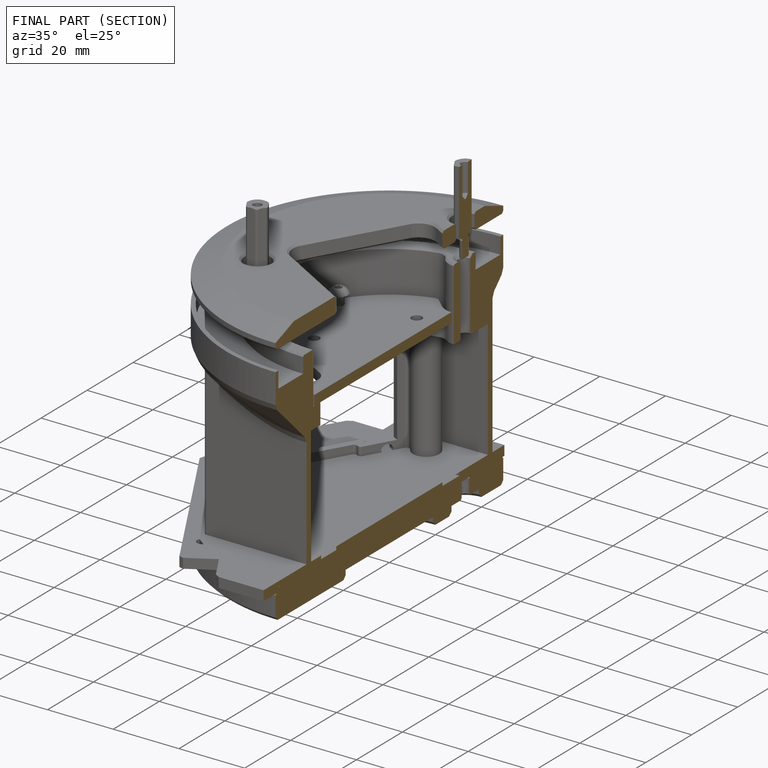
[diagram: finished part — half-section view (interior)]
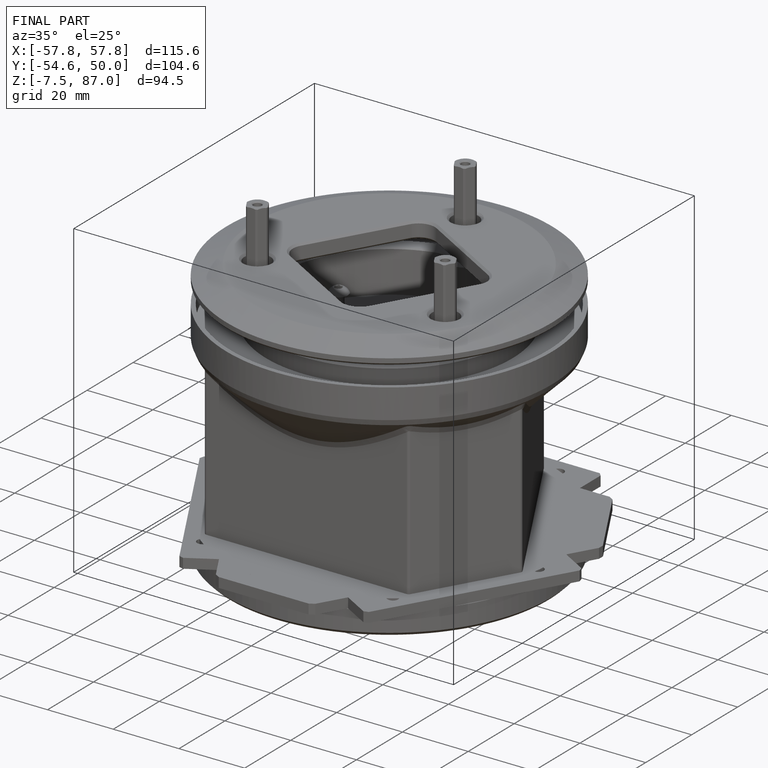
[diagram: finished part — iso view with bounding-box wireframe]
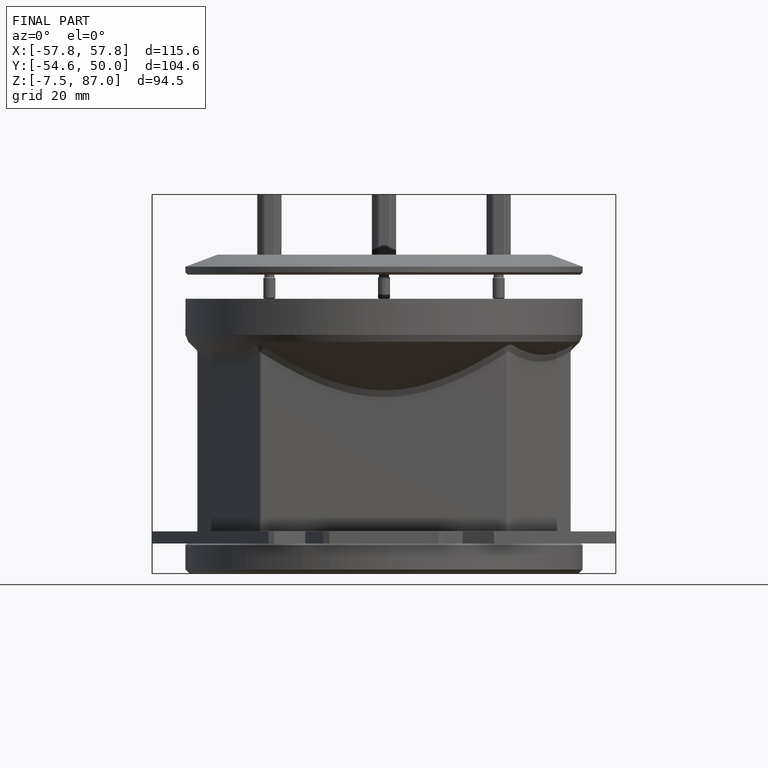
[diagram: finished part — front view with bounding-box wireframe]
